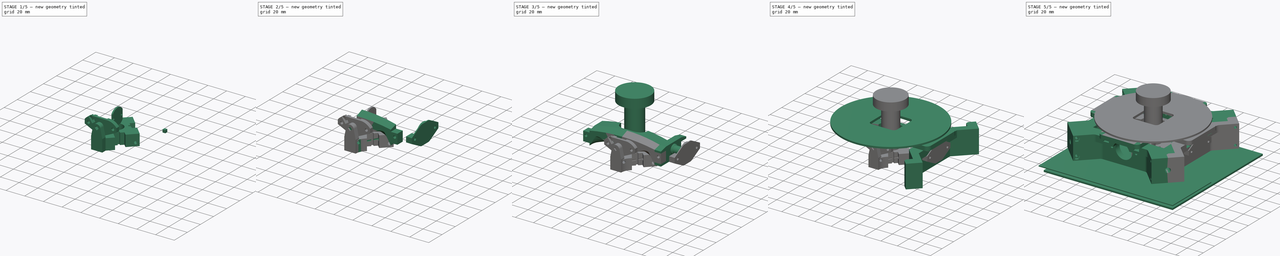
[diagram: build sequence overview — one tinted view per stage of 5, left to right]
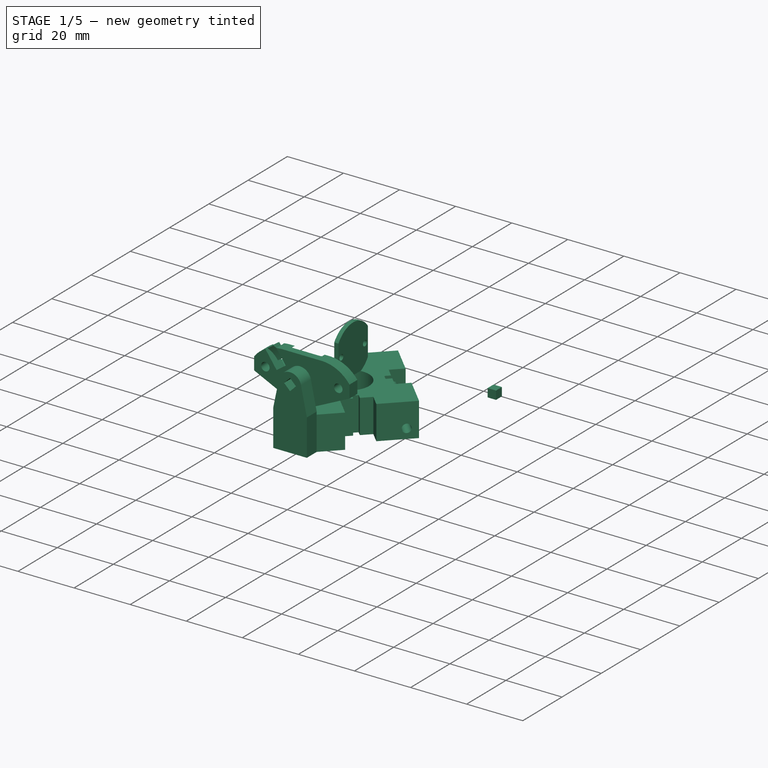
[diagram: stage 1 of 5 — iso view after this stage's code; geometry added in this stage tinted green]
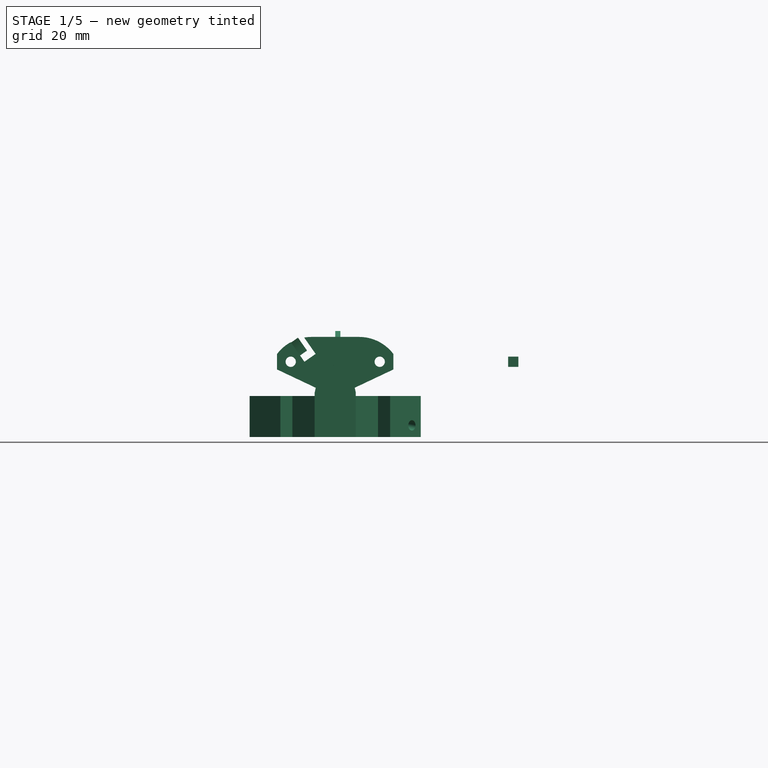
[diagram: stage 1 of 5 — front view after this stage's code; geometry added in this stage tinted green]
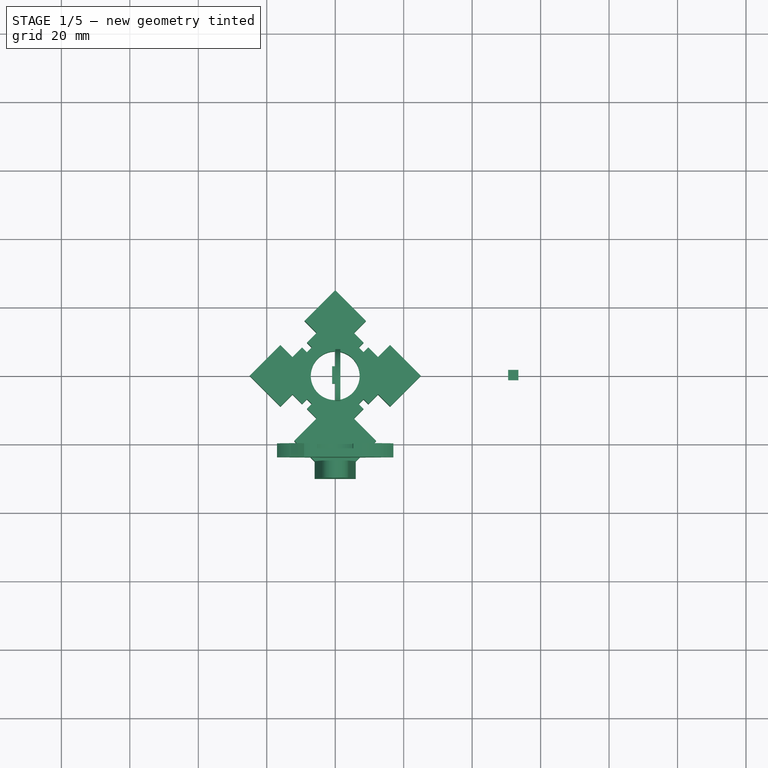
[diagram: stage 1 of 5 — top view after this stage's code; geometry added in this stage tinted green]
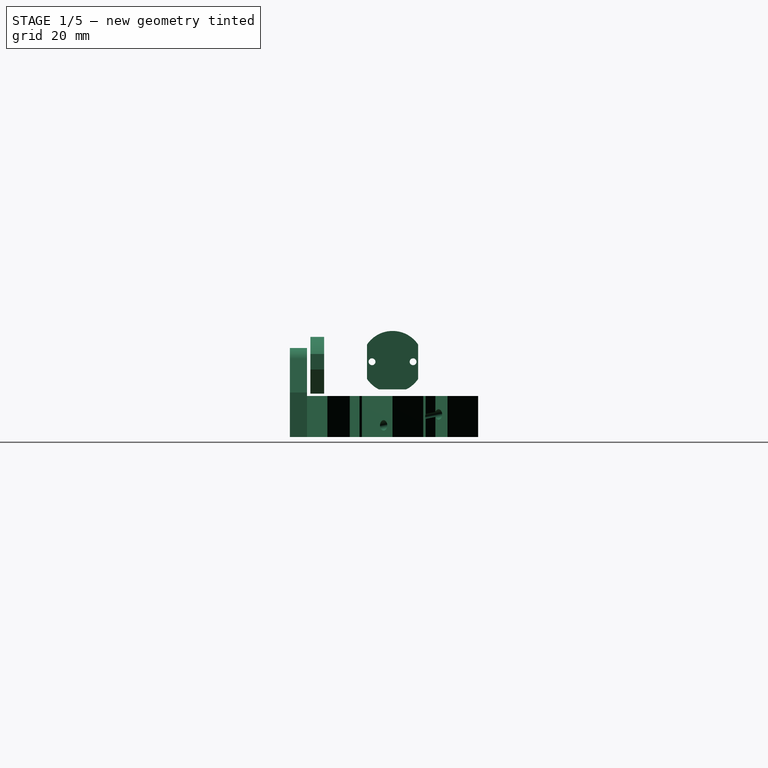
[diagram: stage 1 of 5 — right view after this stage's code; geometry added in this stage tinted green]
FCSTD DOCUMENT  (FreeCAD 0.21R33668 +7 (Git))
Label: cougarGimbalFDM
License: All rights reserved
LicenseURL: http://en.wikipedia.org/wiki/All_rights_reserved
objects: Sketcher::SketchObject×59, PartDesign::Pocket×28, PartDesign::Pad×26, PartDesign::Body×15, PartDesign::Fillet×5, Part::FeaturePython×5, PartDesign::Chamfer×5, PartDesign::Mirrored×5, App::Part×4, PartDesign::Revolution×3, PartDesign::PolarPattern×3, Part::Mirroring×2, Part::Box×2, PartDesign::Plane×1, PartDesign::AdditiveLoft×1
note: 227 computed .brp shape members not serialized (recipe doc carries the construction recipe); baked Part::Feature solids carry a one-line shape summary decoded from their .brp

FEATURE [Sketcher::SketchObject] Sketch230
  AttachmentOffset = pos=(0,0,-23) rot=(0,0,1;0rad)
  FullyConstrained = true
  MapMode = 5
  Placement = pos=(0,0,-23) rot=(0,0,1;0rad)
  Support = -> [XY_Plane045]
  sketch-geometry (1):
    g0: Circle CenterX=0 CenterY=0 CenterZ=0 NormalX=0 NormalY=0 NormalZ=1 AngleXU=0 Radius=7.15
  constraints (2):
    c: Radius(g0) = 7.15
    c: Coincident(g0,g-1)
FEATURE [Sketcher::SketchObject] Sketch232
  AttachmentOffset = pos=(0,0,-10) rot=(0,0,1;0rad)
  FullyConstrained = true
  MapMode = 5
  Placement = pos=(0,0,-10) rot=(0,0,1;0rad)
  Support = -> [XY_Plane045]
  sketch-geometry (11):
    g0: LineSegment StartX=0 StartY=0 StartZ=0 EndX=0 EndY=25 EndZ=0
    g1: LineSegment StartX=0 StartY=0 StartZ=0 EndX=25 EndY=0 EndZ=0
    g2: LineSegment StartX=25 StartY=0 StartZ=0 EndX=16.0355 EndY=8.96447 EndZ=0
    g3: LineSegment StartX=16.0355 StartY=8.96447 StartZ=0 EndX=12.5 EndY=5.42893 EndZ=0
    g4: LineSegment StartX=5.42893 StartY=12.5 StartZ=0 EndX=8.96447 EndY=16.0355 EndZ=0
    g5: LineSegment StartX=8.96447 StartY=16.0355 StartZ=0 EndX=0 EndY=25 EndZ=0
    g6: LineSegment StartX=5.42893 StartY=12.5 StartZ=0 EndX=8.25736 EndY=9.67157 EndZ=0
    g7: LineSegment StartX=8.25736 StartY=9.67157 StartZ=0 EndX=6.84315 EndY=8.25736 EndZ=0
    g8: LineSegment StartX=6.84315 StartY=8.25736 StartZ=0 EndX=8.25736 EndY=6.84315 EndZ=0
    g9: LineSegment StartX=8.25736 StartY=6.84315 StartZ=0 EndX=9.67157 EndY=8.25736 EndZ=0
    g10: LineSegment StartX=9.67157 StartY=8.25736 StartZ=0 EndX=12.5 EndY=5.42893 EndZ=0
  constraints (31):
    c: Coincident(g0,g-1)
    c: Vertical(g0)
    c: Coincident(g1,g0)
    c: PointOnObject(g1,g-1)
    c: Coincident(g3,g2)
    c: Coincident(g5,g4)
    c: Coincident(g6,g4)
    c: Coincident(g7,g6)
    c: Coincident(g8,g7)
    c: Coincident(g9,g8)
    c: Coincident(g10,g9)
    c: Coincident(g10,g3)
    c: Equal(g0,g1)
    c: Parallel(g2,g10)
    c: Parallel(g10,g8)
    c: Parallel(g8,g6)
    c: Parallel(g9,g3)
    c: Parallel(g3,g7)
    c: Parallel(g7,g4)
    c: Equal(g2,g5)
    c: Equal(g3,g4)
    c: Equal(g10,g6)
    c: Distance(g8) = 2
    c: Distance(g3) = 5
    c: Distance(g2,g4) = 10
    c: Distance(g9) = 2
    c: Coincident(g2,g1)
    c: DistanceX(g1,g1) = 25
    c: Perpendicular(g2,g3)
    c: Tangent(g2,g5)
    c: Coincident(g5,g0)
FEATURE [PartDesign::Pad] Pad081  label="MainBlock"
  Direction = (0,0,1)
  Length = 12
  Length2 = 10
  Profile = -> Sketch232
  ReferenceAxis = -> Sketch232 [N_Axis]
  Reversed = true
  Type = 0
FEATURE [PartDesign::Body] Body031  label="Ref_UpperPlate"
  Group = -> [Sketch113,Revolution002,Sketch114,Pocket060,Sketch263,Pad089,PolarPattern001]
  Origin = -> Origin031
  Tip = -> PolarPattern001
FEATURE [PartDesign::Pocket] Pocket159
  BaseFeature = -> Pad081
  Direction = (0,0,-1)
  Length = 20
  Length2 = 5
  Profile = -> Sketch230
  ReferenceAxis = -> Sketch230 [N_Axis]
  Reversed = true
  Type = 0
FEATURE [PartDesign::PolarPattern] PolarPattern
  Angle = 360
  Axis = -> Sketch232 [N_Axis]
  BaseFeature = -> Pocket159
  Occurrences = 4
  Originals = -> [Pad081,Pocket159]
FEATURE [Sketcher::SketchObject] Sketch268
  AttachmentOffset = pos=(0,0,12) rot=(0,0,1;0rad)
  FullyConstrained = true
  MapMode = 5
  Placement = pos=(0,-12,-2.7e-15) rot=(1,0,0;1.5708rad)
  Support = -> [XZ_Plane028]
  sketch-geometry (1):
    g0: Circle CenterX=0 CenterY=0 CenterZ=0 NormalX=0 NormalY=0 NormalZ=1 AngleXU=0 Radius=4
  constraints (2):
    c: Coincident(g0,g-1)
    c: Radius(g0) = 4
FEATURE [Sketcher::SketchObject] Sketch270
  FullyConstrained = true
  MapMode = 5
  Placement = pos=(0,0,0) rot=(0.57735,0.57735,0.57735;2.0944rad)
  Support = -> [YZ_Plane054]
  sketch-geometry (8):
    g0: LineSegment StartX=-7.48331 StartY=-5 StartZ=0 EndX=-7.48331 EndY=5 EndZ=0
    g1: ArcOfCircle CenterX=0 CenterY=0 CenterZ=0 NormalX=0 NormalY=0 NormalZ=1 AngleXU=0 Radius=9 StartAngle=3.73062 EndAngle=4.25183
    g2: LineSegment StartX=7.48331 StartY=5 StartZ=0 EndX=7.48331 EndY=-5 EndZ=0
    g3: LineSegment StartX=-4 StartY=-8.06226 StartZ=0 EndX=4 EndY=-8.06226 EndZ=0
    g4: ArcOfCircle CenterX=0 CenterY=0 CenterZ=0 NormalX=0 NormalY=0 NormalZ=1 AngleXU=0 Radius=9 StartAngle=5.17294 EndAngle=5.69415
    g5: ArcOfCircle CenterX=0 CenterY=0 CenterZ=0 NormalX=0 NormalY=0 NormalZ=1 AngleXU=0 Radius=9 StartAngle=0.589031 EndAngle=2.55256
    g6: Circle CenterX=6 CenterY=0 CenterZ=0 NormalX=0 NormalY=0 NormalZ=1 AngleXU=0 Radius=1
    g7: Circle CenterX=-6 CenterY=0 CenterZ=0 NormalX=0 NormalY=0 NormalZ=1 AngleXU=0 Radius=1
  constraints (21):
    c: Coincident(g1,g0)
    c: Vertical(g2)
    c: Coincident(g3,g1)
    c: Coincident(g4,g2)
    c: Coincident(g4,g3)
    c: Symmetric(g0,g0,g-1)
    c: Symmetric(g3,g1,g-2)
    c: Horizontal(g2,g0)
    c: Coincident(g5,g0)
    c: Coincident(g5,g2)
    c: Radius(g5) = 9
    c: DistanceY(g2,g2) = 10
    c: DistanceX(g3,g3) = 8
    c: Coincident(g1,g5)
    c: Coincident(g1,g4)
    c: Coincident(g1,g-1)
    c: PointOnObject(g6,g-1)
    c: Equal(g6,g7)
    c: Radius(g6) = 1
    c: Symmetric(g6,g7,g-2)
    c: DistanceX(g-1,g6) = 6
FEATURE [PartDesign::Pad] Pad091
  Direction = (1,-2e-16,3e-16)
  Length = 1.5
  Length2 = 10
  Placement = pos=(0,0,0) rot=(0.57735,0.57735,0.57735;2.0944rad)
  Profile = -> Sketch270
  ReferenceAxis = -> Sketch270 [N_Axis]
  Type = 0
FEATURE [Sketcher::SketchObject] Sketch271
  FullyConstrained = true
  MapMode = 5
  Placement = pos=(0,0,0) rot=(0.57735,0.57735,0.57735;2.0944rad)
  Support = -> [YZ_Plane054]
  sketch-geometry (4):
    g0: LineSegment StartX=-2.5 StartY=3.5 StartZ=0 EndX=2.5 EndY=3.5 EndZ=0
    g1: LineSegment StartX=2.5 StartY=3.5 StartZ=0 EndX=2.5 EndY=-3.5 EndZ=0
    g2: LineSegment StartX=2.5 StartY=-3.5 StartZ=0 EndX=-2.5 EndY=-3.5 EndZ=0
    g3: LineSegment StartX=-2.5 StartY=-3.5 StartZ=0 EndX=-2.5 EndY=3.5 EndZ=0
  constraints (11):
    c: Coincident(g0,g1)
    c: Coincident(g1,g2)
    c: Coincident(g2,g3)
    c: Coincident(g3,g0)
    c: Horizontal(g0)
    c: Horizontal(g2)
    c: Vertical(g1)
    c: Vertical(g3)
    c: Symmetric(g1,g0,g-1)
    c: DistanceX(g2,g2) = 5
    c: DistanceY(g1,g1) = 7
FEATURE [PartDesign::Pad] Pad092
  BaseFeature = -> Pad091
  Direction = (1,-2e-16,3e-16)
  Length = 1.8
  Length2 = 10
  Midplane = true
  Placement = pos=(0,0,0) rot=(0.57735,0.57735,0.57735;2.0944rad)
  Profile = -> Sketch271
  ReferenceAxis = -> Sketch271 [N_Axis]
  Type = 0
FEATURE [Sketcher::SketchObject] Sketch277
  AttachmentOffset = pos=(0,0,57.2) rot=(0,0,1;0rad)
  FullyConstrained = true
  MapMode = 5
  Placement = pos=(57.2,-1.27e-14,1.27e-14) rot=(0.57735,0.57735,0.57735;2.0944rad)
  Support = -> [YZ_Plane057]
  sketch-geometry (6):
    g0: LineSegment StartX=-20 StartY=2.8 StartZ=0 EndX=-20 EndY=-2.8 EndZ=0
    g1: LineSegment StartX=0 StartY=10.3 StartZ=0 EndX=0 EndY=-10.3 EndZ=0
    g2: LineSegment StartX=-20 StartY=-2.8 StartZ=0 EndX=-6 EndY=-10.3 EndZ=0
    g3: LineSegment StartX=-6 StartY=-10.3 StartZ=0 EndX=0 EndY=-10.3 EndZ=0
    g4: LineSegment StartX=-20 StartY=2.8 StartZ=0 EndX=-6 EndY=10.3 EndZ=0
    g5: LineSegment StartX=-6 StartY=10.3 StartZ=0 EndX=0 EndY=10.3 EndZ=0
  constraints (16):
    c: PointOnObject(g1,g-2)
    c: PointOnObject(g1,g-2)
    c: Symmetric(g0,g0,g-1)
    c: DistanceY(g0,g0) = 5.6
    c: Coincident(g2,g0)
    c: Coincident(g3,g2)
    c: Coincident(g3,g1)
    c: Horizontal(g3)
    c: DistanceX(g3,g3) = 6
    c: DistanceY(g1,g-1) = 10.3
    c: Coincident(g4,g0)
    c: Coincident(g5,g4)
    c: Coincident(g5,g1)
    c: Symmetric(g2,g4,g-1)
    c: Horizontal(g5)
    c: DistanceX(g0,g-1) = 20
FEATURE [Sketcher::SketchObject] Sketch278
  AttachmentOffset = pos=(0,0,24) rot=(0,0,1;0rad)
  FullyConstrained = true
  MapMode = 5
  Placement = pos=(0,-24,-5.3e-15) rot=(1,0,0;1.5708rad)
  Support = -> [XZ_Plane058]
  sketch-geometry (6):
    g0: LineSegment StartX=-17 StartY=-2.25 StartZ=0 EndX=-17 EndY=2.25 EndZ=0
    g1: LineSegment StartX=-7 StartY=7.25 StartZ=0 EndX=-1.8e-15 EndY=7.25 EndZ=0
    g2: LineSegment StartX=-1.7e-15 StartY=7.25 StartZ=0 EndX=-1.7e-15 EndY=-9.3 EndZ=0
    g3: LineSegment StartX=-3.97485 StartY=-8.40777 StartZ=0 EndX=-17 EndY=-2.25 EndZ=0
    g4: ArcOfCircle CenterX=0 CenterY=0 CenterZ=0 NormalX=0 NormalY=0 NormalZ=1 AngleXU=0 Radius=9.3 StartAngle=4.27077 EndAngle=4.71239
    g5: ArcOfCircle CenterX=-7 CenterY=-5.25 CenterZ=0 NormalX=0 NormalY=0 NormalZ=1 AngleXU=0 Radius=12.5 StartAngle=1.5708 EndAngle=2.49809
  constraints (16):
    c: Horizontal(g1)
    c: Coincident(g2,g1)
    c: PointOnObject(g2,g-2)
    c: Vertical(g2)
    c: Coincident(g3,g0)
    c: DistanceX(g0,g-1) = 17
    c: DistanceY(g0,g0) = 4.5
    c: DistanceY(g0,g1) = 5
    c: DistanceX(g1,g1) = 7
    c: Symmetric(g0,g0,g-1)
    c: Coincident(g4,g-1)
    c: Coincident(g4,g2)
    c: Tangent(g4,g3) = 1.5708
    c: DistanceY(g2,g-1) = 9.3
    c: Coincident(g5,g0)
    c: Tangent(g5,g1) = 1.5708
FEATURE [PartDesign::Pad] Pad096
  Direction = (0,-1,-2e-16)
  Length = 4
  Length2 = 10
  Placement = pos=(0,0,0) rot=(1,0,0;1.5708rad)
  Profile = -> Sketch278
  ReferenceAxis = -> Sketch278 [N_Axis]
  Reversed = true
  Type = 0
FEATURE [PartDesign::Body] Body051  label="HallAdapterOuter"
  Group = -> [Sketch277,Pad099,Sketch286,Pad100,Sketch287,Pad101,Sketch288,Pad102,Sketch289,Pocket169,Mirrored011,Fillet002,Fillet004]
  Origin = -> Origin057
  Tip = -> Fillet004
FEATURE [App::Part] Part005  label="OuterMagnetAssembly"
  Group = -> [Body051,Body050]
  Origin = -> Origin056
FEATURE [Part::Box] Box  label="Ref_MagnetOuter"
  AttacherType = Attacher::AttachEngine3D
  Height = 3
  Length = 3
  Placement = pos=(50.5,-1.5,-1.5) rot=(0,0,1;0rad)
  Width = 3
FEATURE [Sketcher::SketchObject] Sketch294
  FullyConstrained = true
  MapMode = 5
  Placement = pos=(2e-15,-20,4e-16) rot=(-1,0,0;1.5708rad)
  Support = -> [Pad096]
  sketch-geometry (1):
    g0: Circle CenterX=-13 CenterY=0 CenterZ=0 NormalX=0 NormalY=0 NormalZ=1 AngleXU=0 Radius=1.5
  constraints (3):
    c: PointOnObject(g0,g-1)
    c: Radius(g0) = 1.5
    c: DistanceX(g0,g-1) = 13
FEATURE [PartDesign::Pocket] Pocket172
  BaseFeature = -> Pad096
  Direction = (1e-16,-1,-2e-16)
  Length = 6
  Length2 = 5
  Placement = pos=(0,0,0) rot=(1,0,0;1.5708rad)
  Profile = -> Sketch294
  ReferenceAxis = -> Sketch294 [N_Axis]
  Type = 0
FEATURE [Sketcher::SketchObject] Sketch295
  FullyConstrained = true
  MapMode = 5
  Placement = pos=(2e-15,-20,4e-16) rot=(-1,0,0;1.5708rad)
  Support = -> [Pocket172]
  sketch-geometry (5):
    g0: LineSegment StartX=6e-16 StartY=9 StartZ=0 EndX=-1.7e-15 EndY=-9 EndZ=0
    g1: Circle CenterX=-6 CenterY=0 CenterZ=0 NormalX=0 NormalY=0 NormalZ=1 AngleXU=0 Radius=0.95
    g2: ArcOfCircle CenterX=0 CenterY=0 CenterZ=0 NormalX=0 NormalY=0 NormalZ=1 AngleXU=0 Radius=9 StartAngle=3.72728 EndAngle=4.71239
    g3: LineSegment StartX=-7.5 StartY=-4.97494 StartZ=0 EndX=-7.5 EndY=4.97494 EndZ=0
    g4: ArcOfCircle CenterX=0 CenterY=0 CenterZ=0 NormalX=0 NormalY=0 NormalZ=1 AngleXU=0 Radius=9 StartAngle=1.5708 EndAngle=2.55591
  constraints (15):
    c: PointOnObject(g0,g-2)
    c: PointOnObject(g0,g-2)
    c: PointOnObject(g1,g-1)
    c: Radius(g1) = 0.95
    c: Coincident(g3,g2)
    c: Vertical(g3)
    c: Coincident(g4,g3)
    c: DistanceX(g1,g2) = 6
    c: Coincident(g2,g0)
    c: Radius(g4) = 9
    c: Radius(g2) = 9
    c: Coincident(g2,g-1)
    c: Coincident(g4,g2)
    c: DistanceX(g3,g-1) = 7.5
    c: Coincident(g0,g4)
FEATURE [PartDesign::Pocket] Pocket173
  BaseFeature = -> Pocket172
  Direction = (1e-16,-1,-2e-16)
  Length = 1.5
  Length2 = 5
  Placement = pos=(0,0,0) rot=(1,0,0;1.5708rad)
  Profile = -> Sketch295
  ReferenceAxis = -> Sketch295 [N_Axis]
  Type = 0
FEATURE [Sketcher::SketchObject] Sketch296
  AttachmentOffset = pos=(0,0,25) rot=(0,0,1;0rad)
  FullyConstrained = true
  MapMode = 5
  Placement = pos=(0,-25,-5.6e-15) rot=(1,0,0;1.5708rad)
  Support = -> [XZ_Plane045]
  sketch-geometry (10):
    g0: LineSegment StartX=-3.91278 StartY=0.830744 StartZ=0 EndX=-6 EndY=-9 EndZ=0
    g1: LineSegment StartX=3.91278 StartY=0.830744 StartZ=0 EndX=6 EndY=-9 EndZ=0
    g2: LineSegment StartX=6 StartY=-9 StartZ=0 EndX=6 EndY=-22 EndZ=0
    g3: LineSegment StartX=6 StartY=-22 StartZ=0 EndX=-6 EndY=-22 EndZ=0
    g4: LineSegment StartX=-6 StartY=-22 StartZ=0 EndX=-6 EndY=-9 EndZ=0
    g5: ArcOfCircle CenterX=0 CenterY=0 CenterZ=0 NormalX=0 NormalY=0 NormalZ=1 AngleXU=0 Radius=4 StartAngle=0.209209 EndAngle=2.93238
    g6: LineSegment StartX=-2.12132 StartY=1.3e-15 StartZ=0 EndX=0 EndY=-2.12132 EndZ=0
    g7: LineSegment StartX=0 StartY=-2.12132 StartZ=0 EndX=2.12132 EndY=0 EndZ=0
    g8: LineSegment StartX=2.12132 StartY=0 StartZ=0 EndX=0 EndY=2.12132 EndZ=0
    g9: LineSegment StartX=0 StartY=2.12132 StartZ=0 EndX=-2.12132 EndY=1.3e-15 EndZ=0
  constraints (27):
    c: Symmetric(g1,g0,g-2)
    c: DistanceY(g1,g-1) = 9
    c: DistanceX(g0,g1) = 12
    c: Coincident(g2,g3)
    c: Coincident(g3,g4)
    c: Horizontal(g3)
    c: Vertical(g2)
    c: Vertical(g4)
    c: Coincident(g2,g1)
    c: Coincident(g4,g0)
    c: DistanceY(g4,g4) = 13
    c: Coincident(g5,g0)
    c: Tangent(g5,g1) = 1.5708
    c: Horizontal(g0,g1)
    c: Radius(g5) = 4
    c: Coincident(g5,g-1)
    c: Coincident(g7,g6)
    c: Coincident(g8,g7)
    c: Coincident(g9,g8)
    c: Coincident(g9,g6)
    c: Equal(g9,g6)
    c: Equal(g6,g7)
    c: Equal(g7,g8)
    c: Symmetric(g8,g6,g5)
    c: PointOnObject(g8,g-2)
    c: Perpendicular(g8,g7)
    c: Distance(g8) = 3
FEATURE [Sketcher::SketchObject] Sketch297
  AttachmentOffset = pos=(0,0,-22) rot=(0,0,1;0rad)
  FullyConstrained = true
  MapMode = 5
  Placement = pos=(0,0,-22) rot=(0,0,1;0rad)
  Support = -> [XY_Plane045]
  sketch-geometry (6):
    g0: LineSegment StartX=-11.965 StartY=-19.035 StartZ=0 EndX=-5.43 EndY=-12.5 EndZ=0
    g1: LineSegment StartX=-5.43 StartY=-12.5 StartZ=0 EndX=5.43 EndY=-12.5 EndZ=0
    g2: LineSegment StartX=5.43 StartY=-12.5 StartZ=0 EndX=11.965 EndY=-19.035 EndZ=0
    g3: LineSegment StartX=11.965 StartY=-19.035 StartZ=0 EndX=6 EndY=-25 EndZ=0
    g4: LineSegment StartX=6 StartY=-25 StartZ=0 EndX=-6 EndY=-25 EndZ=0
    g5: LineSegment StartX=-6 StartY=-25 StartZ=0 EndX=-11.965 EndY=-19.035 EndZ=0
  constraints (17):
    c: Coincident(g1,g0)
    c: Coincident(g2,g1)
    c: Coincident(g3,g2)
    c: Coincident(g4,g3)
    c: Horizontal(g4)
    c: Coincident(g5,g4)
    c: Coincident(g5,g0)
    c: Angle(g-2,g0) = 2.35619
    c: Symmetric(g1,g0,g-2)
    c: Perpendicular(g0,g2)
    c: Horizontal(g2,g0)
    c: DistanceY(g0,g-1) = 12.5
    c: DistanceX(g1,g1) = 10.86
    c: Perpendicular(g0,g5)
    c: Perpendicular(g2,g3)
    c: DistanceY(g3,g-1) = 25
    c: DistanceX(g4,g4) = 12
FEATURE [PartDesign::Pad] Pad106
  BaseFeature = -> PolarPattern
  Direction = (0,0,1)
  Length = 12
  Length2 = 10
  Profile = -> Sketch297
  ReferenceAxis = -> Sketch297 [N_Axis]
  Type = 0
FEATURE [PartDesign::Pad] Pad105
  BaseFeature = -> Pad106
  Direction = (0,-1,-2e-16)
  Length = 5
  Length2 = 10
  Profile = -> Sketch296
  ReferenceAxis = -> Sketch296 [N_Axis]
  Type = 0
FEATURE [PartDesign::Pocket] Pocket160
  BaseFeature = -> Pad105
  Direction = (-0.700225,0.700225,0.139173)
  Length = 60
  Length2 = 5
  Midplane = true
  Profile = -> Sketch266
  ReferenceAxis = -> Sketch266 [N_Axis]
  Type = 0
FEATURE [Sketcher::SketchObject] Sketch299
  FullyConstrained = true
  MapMode = 5
  Placement = pos=(2e-15,-20,4e-16) rot=(-1,0,0;1.5708rad)
  Support = -> [Pocket172]
  sketch-geometry (4):
    g0: LineSegment StartX=0 StartY=4 StartZ=0 EndX=-4.5 EndY=4 EndZ=0
    g1: LineSegment StartX=-4.5 StartY=4 StartZ=0 EndX=-4.5 EndY=-4 EndZ=0
    g2: LineSegment StartX=-4.5 StartY=-4 StartZ=0 EndX=0 EndY=-4 EndZ=0
    g3: LineSegment StartX=0 StartY=-4 StartZ=0 EndX=0 EndY=4 EndZ=0
  constraints (11):
    c: Coincident(g0,g1)
    c: Coincident(g1,g2)
    c: Coincident(g2,g3)
    c: Coincident(g3,g0)
    c: Horizontal(g0)
    c: Horizontal(g2)
    c: Vertical(g3)
    c: PointOnObject(g0,g-2)
    c: DistanceX(g2,g2) = 4.5
    c: DistanceY(g1,g1) = 8
    c: Symmetric(g0,g1,g-1)
FEATURE [PartDesign::Pocket] Pocket175
  BaseFeature = -> Pocket173
  Direction = (1e-16,-1,-2e-16)
  Length = 3
  Length2 = 5
  Placement = pos=(0,0,0) rot=(1,0,0;1.5708rad)
  Profile = -> Sketch299
  ReferenceAxis = -> Sketch299 [N_Axis]
  Type = 0
FEATURE [PartDesign::Mirrored] Mirrored012
  BaseFeature = -> Pocket175
  MirrorPlane = -> Sketch278 [V_Axis]
  Originals = -> [Pad096,Pocket172,Pocket173,Pocket175]
  Placement = pos=(0,0,0) rot=(1,0,0;1.5708rad)
FEATURE [Sketcher::SketchObject] Sketch300
  AttachmentOffset = pos=(0,0,24) rot=(0,0,1;0rad)
  FullyConstrained = true
  MapMode = 5
  Placement = pos=(0,-24,-5.3e-15) rot=(1,0,0;1.5708rad)
  Support = -> [XZ_Plane058]
  sketch-geometry (4):
    g0: LineSegment StartX=-9 StartY=0 StartZ=0 EndX=-13.5886 EndY=6.55322 EndZ=0
    g1: LineSegment StartX=-13.5886 StartY=6.55322 StartZ=0 EndX=-10.312 EndY=8.84752 EndZ=0
    g2: LineSegment StartX=-10.312 StartY=8.84752 StartZ=0 EndX=-5.72339 EndY=2.29431 EndZ=0
    g3: LineSegment StartX=-5.72339 StartY=2.29431 StartZ=0 EndX=-9 EndY=0 EndZ=0
  constraints (12):
    c: Coincident(g0,g1)
    c: Coincident(g1,g2)
    c: Coincident(g2,g3)
    c: Coincident(g3,g0)
    c: Perpendicular(g1,g0)
    c: Perpendicular(g1,g2)
    c: Perpendicular(g0,g3)
    c: Distance(g1) = 4
    c: Distance(g0) = 8
    c: PointOnObject(g0,g-1)
    c: DistanceX(g0,g-1) = 9
    c: Angle(g-1,g3) = 0.610865
FEATURE [PartDesign::Pocket] Pocket176
  BaseFeature = -> Mirrored012
  Direction = (0,1,2e-16)
  Length = 5
  Length2 = 5
  Placement = pos=(0,0,0) rot=(1,0,0;1.5708rad)
  Profile = -> Sketch300
  ReferenceAxis = -> Sketch300 [N_Axis]
  Type = 0
FEATURE [Sketcher::SketchObject] Sketch301
  AttachmentOffset = pos=(0,0,23.5) rot=(0,0,1;0rad)
  FullyConstrained = true
  MapMode = 5
  Placement = pos=(0,-23.5,-5.2e-15) rot=(1,0,0;1.5708rad)
  Support = -> [XZ_Plane058]
  sketch-geometry (5):
    g0: ArcOfCircle CenterX=0 CenterY=0 CenterZ=0 NormalX=0 NormalY=0 NormalZ=1 AngleXU=0 Radius=8.5 StartAngle=4.288 EndAngle=5.13678
    g1: LineSegment StartX=3.5 StartY=-7.74597 StartZ=0 EndX=3.5 EndY=-3.74597 EndZ=0
    g2: LineSegment StartX=3.5 StartY=-3.74597 StartZ=0 EndX=-6.70569 EndY=3.27661 EndZ=0
    g3: LineSegment StartX=-6.70569 StartY=3.27661 StartZ=0 EndX=-9 EndY=0 EndZ=0
    g4: LineSegment StartX=-9 StartY=0 StartZ=0 EndX=-3.5 EndY=-7.74597 EndZ=0
  constraints (15):
    c: Coincident(g0,g-1)
    c: Radius(g0) = 8.5
    c: DistanceX(g-1,g0) = 3.5
    c: Vertical(g1)
    c: DistanceY(g1,g1) = 4
    c: Horizontal(g0,g0)
    c: Coincident(g2,g1)
    c: Coincident(g3,g2)
    c: PointOnObject(g3,g-1)
    c: Coincident(g4,g3)
    c: Coincident(g4,g0)
    c: Angle(g-1,g3) = 0.959931
    c: Distance(g3) = 4
    c: DistanceX(g3,g-1) = 9
    c: Coincident(g1,g0)
FEATURE [PartDesign::Pocket] Pocket177
  BaseFeature = -> Pocket176
  Direction = (0,1,2e-16)
  Length = 5
  Length2 = 5
  Placement = pos=(0,0,0) rot=(1,0,0;1.5708rad)
  Profile = -> Sketch301
  ReferenceAxis = -> Sketch301 [N_Axis]
  Type = 0
FEATURE [Sketcher::SketchObject] Sketch302
  FullyConstrained = true
  MapMode = 5
  Placement = pos=(-6.03909,5e-16,-4.22862) rot=(0.461749,0,0.887011;3.14159rad)
  Support = -> [Pocket177]
  sketch-geometry (4):
    g0: LineSegment StartX=12 StartY=20 StartZ=0 EndX=12 EndY=23 EndZ=0
    g1: ArcOfCircle CenterX=7.4 CenterY=29.3033 CenterZ=0 NormalX=0 NormalY=0 NormalZ=1 AngleXU=0 Radius=7.80333 StartAngle=4.71239 EndAngle=5.34282
    g2: LineSegment StartX=7.4 StartY=21.5 StartZ=0 EndX=7.4 EndY=20 EndZ=0
    g3: LineSegment StartX=7.4 StartY=20 StartZ=0 EndX=12 EndY=20 EndZ=0
  constraints (13):
    c: Vertical(g0)
    c: DistanceX(g-1,g0) = 12
    c: DistanceX(g1,g0) = 4.6
    c: DistanceY(g0,g0) = 3
    c: Coincident(g1,g0)
    c: DistanceY(g-1,g0) = 20
    c: Coincident(g2,g1)
    c: Coincident(g3,g2)
    c: Coincident(g3,g0)
    c: Horizontal(g3)
    c: Vertical(g2)
    c: DistanceY(g2,g2) = 1.5
    c: Vertical(g1,g1)
FEATURE [PartDesign::Pad] Pad107
  BaseFeature = -> Pocket177
  Direction = (0.819152,0,0.573576)
  Length = 2.5
  Length2 = 10
  Placement = pos=(0,0,0) rot=(1,0,0;1.5708rad)
  Profile = -> Sketch302
  ReferenceAxis = -> Sketch302 [N_Axis]
  Type = 0
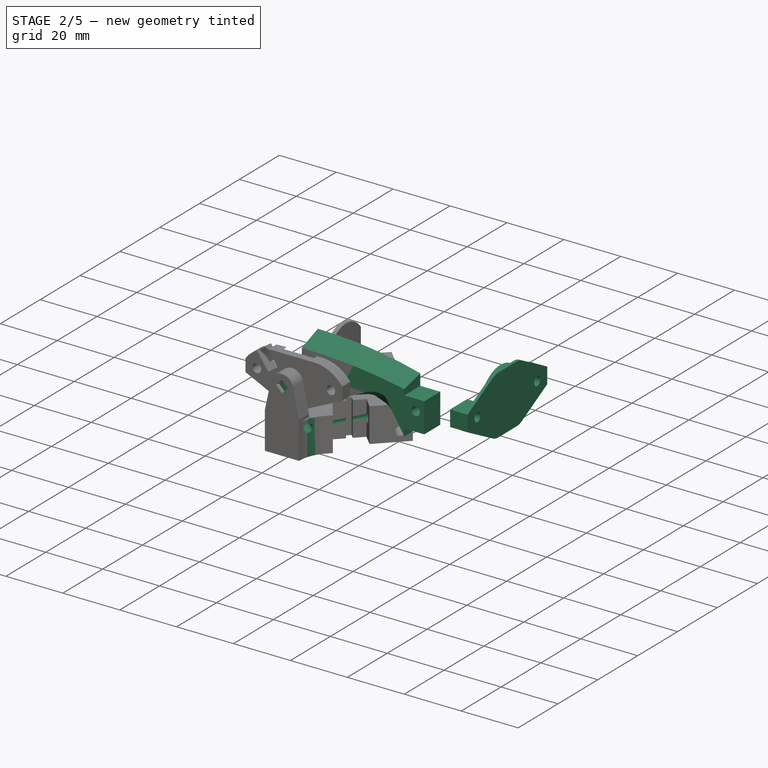
[diagram: stage 2 of 5 — iso view after this stage's code; geometry added in this stage tinted green]
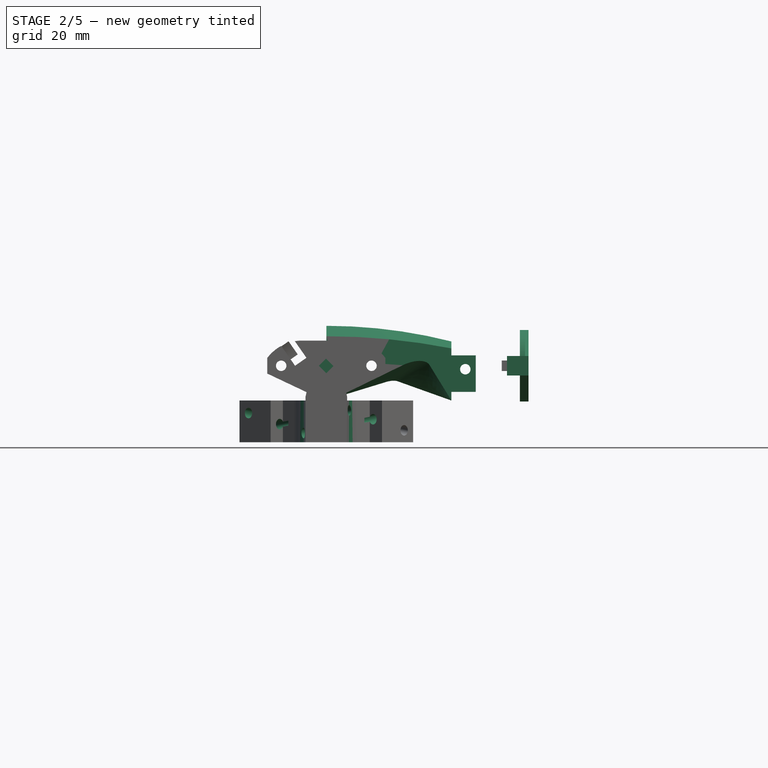
[diagram: stage 2 of 5 — front view after this stage's code; geometry added in this stage tinted green]
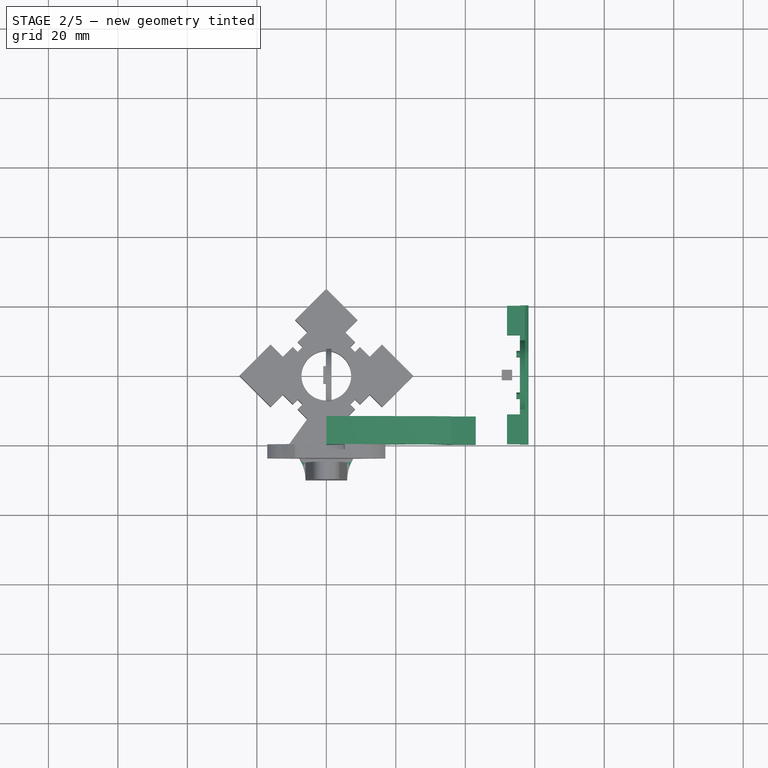
[diagram: stage 2 of 5 — top view after this stage's code; geometry added in this stage tinted green]
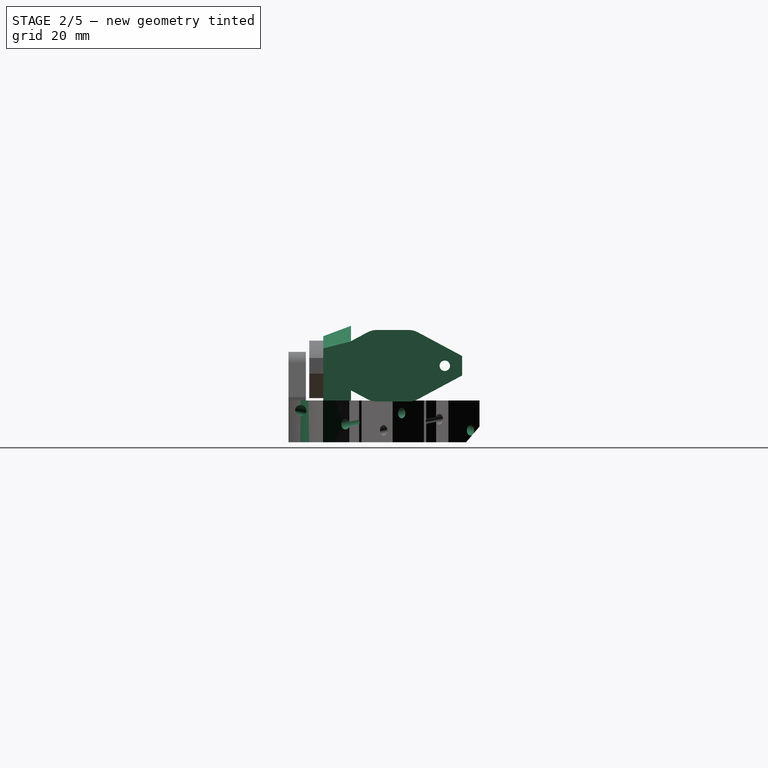
[diagram: stage 2 of 5 — right view after this stage's code; geometry added in this stage tinted green]
FEATURE [PartDesign::AdditiveLoft] AdditiveLoft
  Closed = false
  Placement = pos=(0,0,0) rot=(1,0,0;1.5708rad)
  Profile = -> Sketch103
  Ruled = false
  Sections = -> [Sketch265]
FEATURE [PartDesign::Pocket] Pocket058
  BaseFeature = -> AdditiveLoft
  Direction = (0,1,2e-16)
  Length = 50
  Length2 = 5
  Placement = pos=(0,0,0) rot=(1,0,0;1.5708rad)
  Profile = -> Sketch107
  ReferenceAxis = -> Sketch107 [N_Axis]
  Reversed = true
  Type = 0
FEATURE [PartDesign::Pocket] Pocket056
  BaseFeature = -> Pocket058
  Direction = (0,1,2e-16)
  Length = 6.5
  Length2 = 5
  Placement = pos=(0,0,0) rot=(1,0,0;1.5708rad)
  Profile = -> Sketch104
  ReferenceAxis = -> Sketch104 [N_Axis]
  Reversed = true
  Type = 0
FEATURE [PartDesign::Pad] Pad099
  Direction = (1,-2e-16,3e-16)
  Length = 1
  Length2 = 10
  Placement = pos=(0,0,0) rot=(0.57735,0.57735,0.57735;2.0944rad)
  Profile = -> Sketch277
  ReferenceAxis = -> Sketch277 [N_Axis]
  Type = 0
FEATURE [Sketcher::SketchObject] Sketch286
  FullyConstrained = true
  MapMode = 5
  Placement = pos=(57.2,-1.94e-14,8.6e-15) rot=(-0.57735,-0.57735,0.57735;2.0944rad)
  Support = -> [Pad099]
  sketch-geometry (1):
    g0: Circle CenterX=-6 CenterY=0 CenterZ=0 NormalX=0 NormalY=0 NormalZ=1 AngleXU=0 Radius=0.95
  constraints (3):
    c: PointOnObject(g0,g-1)
    c: DistanceX(g0,g-1) = 6
    c: Radius(g0) = 0.95
FEATURE [PartDesign::Pad] Pad100
  BaseFeature = -> Pad099
  Direction = (-1,5e-16,-4e-16)
  Length = 2.5
  Length2 = 10
  Placement = pos=(0,0,0) rot=(0.57735,0.57735,0.57735;2.0944rad)
  Profile = -> Sketch286
  ReferenceAxis = -> Sketch286 [N_Axis]
  Type = 0
FEATURE [Sketcher::SketchObject] Sketch287
  FullyConstrained = true
  MapMode = 5
  Placement = pos=(57.2,-1.94e-14,8.6e-15) rot=(-0.57735,-0.57735,0.57735;2.0944rad)
  Support = -> [Pad100]
  sketch-geometry (8):
    g0: LineSegment StartX=-20 StartY=-2.8 StartZ=0 EndX=-20 EndY=2.8 EndZ=0
    g1: LineSegment StartX=-20 StartY=2.8 StartZ=0 EndX=-6 EndY=10.3 EndZ=0
    g2: LineSegment StartX=-6 StartY=10.3 StartZ=0 EndX=0 EndY=10.3 EndZ=0
    g3: ArcOfCircle CenterX=0 CenterY=0 CenterZ=0 NormalX=0 NormalY=0 NormalZ=1 AngleXU=0 Radius=9.1 StartAngle=1.5708 EndAngle=4.71239
    g4: LineSegment StartX=6e-16 StartY=9.1 StartZ=0 EndX=0 EndY=10.3 EndZ=0
    g5: LineSegment StartX=-1.7e-15 StartY=-9.1 StartZ=0 EndX=-1.9e-15 EndY=-10.3 EndZ=0
    g6: ArcOfCircle CenterX=0 CenterY=0 CenterZ=0 NormalX=0 NormalY=0 NormalZ=1 AngleXU=0 Radius=10.3 StartAngle=3.4169 EndAngle=4.71239
    g7: LineSegment StartX=-20 StartY=-2.8 StartZ=0 EndX=-9.91211 EndY=-2.8 EndZ=0
  constraints (23):
    c: Coincident(g1,g0)
    c: Coincident(g2,g1)
    c: PointOnObject(g2,g-2)
    c: Horizontal(g2)
    c: PointOnObject(g5,g-2)
    c: DistanceY(g-1,g2) = 10.3
    c: DistanceX(g2,g2) = 6
    c: Symmetric(g0,g0,g-1)
    c: DistanceY(g0,g0) = 5.6
    c: PointOnObject(g3,g-2)
    c: PointOnObject(g3,g-2)
    c: Coincident(g4,g3)
    c: Coincident(g4,g2)
    c: Coincident(g5,g3)
    c: Radius(g3) = 9.1
    c: DistanceX(g0,g-1) = 20
    c: Coincident(g3,g-1)
    c: Coincident(g6,g3)
    c: Coincident(g6,g5)
    c: Coincident(g7,g0)
    c: Coincident(g7,g6)
    c: Horizontal(g7)
    c: Radius(g6) = 10.3
FEATURE [PartDesign::Pad] Pad101
  BaseFeature = -> Pad100
  Direction = (-1,7e-16,-6e-16)
  Length = 1.5
  Length2 = 10
  Placement = pos=(0,0,0) rot=(0.57735,0.57735,0.57735;2.0944rad)
  Profile = -> Sketch287
  ReferenceAxis = -> Sketch287 [N_Axis]
  Type = 0
FEATURE [Sketcher::SketchObject] Sketch288
  FullyConstrained = true
  MapMode = 5
  Placement = pos=(57.2,-1.94e-14,8.6e-15) rot=(-0.57735,-0.57735,0.57735;2.0944rad)
  Support = -> [Pad101]
  sketch-geometry (4):
    g0: LineSegment StartX=-19.9 StartY=-2.8 StartZ=0 EndX=-11.4 EndY=-2.8 EndZ=0
    g1: LineSegment StartX=-11.4 StartY=-2.8 StartZ=0 EndX=-11.4 EndY=2.8 EndZ=0
    g2: LineSegment StartX=-11.4 StartY=2.8 StartZ=0 EndX=-19.9 EndY=2.8 EndZ=0
    g3: LineSegment StartX=-19.9 StartY=2.8 StartZ=0 EndX=-19.9 EndY=-2.8 EndZ=0
  constraints (11):
    c: Coincident(g0,g1)
    c: Coincident(g1,g2)
    c: Coincident(g2,g3)
    c: Coincident(g3,g0)
    c: Horizontal(g0)
    c: Horizontal(g2)
    c: Vertical(g1)
    c: Symmetric(g0,g2,g-1)
    c: DistanceY(g3,g3) = 5.6
    c: DistanceX(g0,g-1) = 19.9
    c: DistanceX(g2,g2) = 8.5
FEATURE [PartDesign::Pad] Pad102
  BaseFeature = -> Pad101
  Direction = (-1,1.1e-15,-5e-16)
  Length = 5.2
  Length2 = 10
  Placement = pos=(0,0,0) rot=(0.57735,0.57735,0.57735;2.0944rad)
  Profile = -> Sketch288
  ReferenceAxis = -> Sketch288 [N_Axis]
  Type = 0
FEATURE [Sketcher::SketchObject] Sketch289
  FullyConstrained = true
  MapMode = 5
  Placement = pos=(58.2,-1.98e-14,8.7e-15) rot=(0.57735,0.57735,0.57735;2.0944rad)
  Support = -> [Pad102]
  sketch-geometry (1):
    g0: Circle CenterX=-15 CenterY=0 CenterZ=0 NormalX=0 NormalY=0 NormalZ=1 AngleXU=0 Radius=1.5
  constraints (3):
    c: PointOnObject(g0,g-1)
    c: Radius(g0) = 1.5
    c: DistanceX(g0,g-1) = 15
FEATURE [PartDesign::Pocket] Pocket169
  BaseFeature = -> Pad102
  Direction = (-1,1.2e-15,-6e-16)
  Length = 30
  Length2 = 5
  Midplane = true
  Placement = pos=(0,0,0) rot=(0.57735,0.57735,0.57735;2.0944rad)
  Profile = -> Sketch289
  ReferenceAxis = -> Sketch289 [N_Axis]
  Type = 0
FEATURE [PartDesign::Mirrored] Mirrored011
  BaseFeature = -> Pocket169
  MirrorPlane = -> Sketch277 [V_Axis]
  Originals = -> [Pad099,Pad100,Pad101,Pad102,Pocket169]
  Placement = pos=(0,0,0) rot=(0.57735,0.57735,0.57735;2.0944rad)
FEATURE [PartDesign::Fillet] Fillet002
  Base = -> Mirrored011 [Edge100,Edge93,Edge70,Edge65,Edge47,Edge18]
  BaseFeature = -> Mirrored011
  Placement = pos=(0,0,0) rot=(0.57735,0.57735,0.57735;2.0944rad)
  Radius = 6
  SupportTransform = false
  UseAllEdges = false
FEATURE [PartDesign::Fillet] Fillet004
  Base = -> Fillet002 [Edge86,Edge115]
  BaseFeature = -> Fillet002
  Placement = pos=(0,0,0) rot=(0.57735,0.57735,0.57735;2.0944rad)
  Radius = 2
  SupportTransform = false
  UseAllEdges = false
FEATURE [Part::Box] Box001  label="Ref_MagnetInner"
  AttacherType = Attacher::AttachEngine3D
  Height = 3
  Length = 3
  Placement = pos=(-0.0857864,-28.6,-2.20711) rot=(0,-1,0;0.785398rad)
  Width = 3
FEATURE [PartDesign::Fillet] Fillet005
  Base = -> Pocket160 [Edge187,Edge158]
  BaseFeature = -> Pocket160
  Radius = 12
  SupportTransform = false
  UseAllEdges = false
FEATURE [PartDesign::PolarPattern] PolarPattern002
  Angle = 360
  Axis = -> Z_Axis045
  BaseFeature = -> Fillet005
  Occurrences = 4
  Originals = -> [Pocket160]
FEATURE [PartDesign::Pocket] Pocket162
  BaseFeature = -> PolarPattern002
  Direction = (-1,2e-16,-3e-16)
  Length = 10
  Length2 = 5
  Midplane = true
  Profile = -> Sketch272
  ReferenceAxis = -> Sketch272 [N_Axis]
  Type = 0
FEATURE [PartDesign::Body] Body052  label="HallAdapterInner"
  Group = -> [Pad096,Sketch278,Sketch294,Pocket172,Sketch295,Pocket173,Pocket175,Mirrored012,Sketch299,Sketch300,Pocket176,Sketch301,Pocket177,Sketch302,Pad107]
  Origin = -> Origin058
  Tip = -> Pad107
FEATURE [Sketcher::SketchObject] Sketch303
  AttachmentOffset = pos=(0,0,-10) rot=(0,0,1;0rad)
  FullyConstrained = true
  MapMode = 5
  Placement = pos=(0,0,-10) rot=(0,0,1;0rad)
  Support = -> [XY_Plane045]
  sketch-geometry (6):
    g0: LineSegment StartX=-5.5 StartY=-12.5 StartZ=0 EndX=-12 EndY=-19 EndZ=0
    g1: LineSegment StartX=-12 StartY=-19 StartZ=0 EndX=-10.9393 EndY=-20.0607 EndZ=0
    g2: LineSegment StartX=-10.9393 StartY=-20.0607 StartZ=0 EndX=-5.5 EndY=-12.5 EndZ=0
    g3: LineSegment StartX=5.5 StartY=-12.5 StartZ=0 EndX=12 EndY=-19 EndZ=0
    g4: LineSegment StartX=12 StartY=-19 StartZ=0 EndX=10.9393 EndY=-20.0607 EndZ=0
    g5: LineSegment StartX=10.9393 StartY=-20.0607 StartZ=0 EndX=5.5 EndY=-12.5 EndZ=0
  constraints (15):
    c: Coincident(g1,g0)
    c: Coincident(g2,g1)
    c: Coincident(g2,g0)
    c: DistanceX(g0,g-1) = 5.5
    c: DistanceY(g0,g-1) = 12.5
    c: Angle(g-1,g0) = 0.785398
    c: DistanceX(g0,g-1) = 12
    c: Perpendicular(g0,g1)
    c: Distance(g1) = 1.5
    c: Coincident(g4,g3)
    c: Coincident(g5,g4)
    c: Coincident(g5,g3)
    c: Symmetric(g3,g0,g-2)
    c: Symmetric(g1,g4,g-2)
    c: Symmetric(g3,g0,g-2)
FEATURE [PartDesign::Pocket] Pocket178
  BaseFeature = -> Pocket162
  Direction = (0,0,-1)
  Length = 13
  Length2 = 5
  Profile = -> Sketch303
  ReferenceAxis = -> Sketch303 [N_Axis]
  Type = 0
FEATURE [PartDesign::Chamfer] Chamfer044
  Angle = 45
  Base = -> Pocket178 [Edge264]
  BaseFeature = -> Pocket178
  ChamferType = 0
  FlipDirection = false
  Size = 0.5
  Size2 = 1
  SupportTransform = false
  UseAllEdges = false
FEATURE [PartDesign::Body] Body045  label="SpringAttachment"
  Group = -> [Sketch232,Pad081,Sketch230,Pocket159,PolarPattern,Pad106,Pad105,DatumPlane,Sketch266,Pocket160,Fillet005,PolarPattern002,Pocket162,Sketch272,Sketch296,Sketch297,Sketch303,Pocket178,Chamfer044]
  Origin = -> Origin045
  Tip = -> Chamfer044
FEATURE [App::Part] Part004  label="InnerPivot"
  Group = -> [Body027,Body045,Box001]
  Origin = -> Origin053
  Placement = pos=(0,0,0) rot=(0,1,0;5.96903rad)
FEATURE [App::Part] Part  label="InnerMagnetAssembly"
  Group = -> [Body049,Body052,Box]
  Origin = -> Origin059
FEATURE [App::Part] Part003  label="OuterPivot"
  Group = -> [Body028,Part__Mirroring,Tube,Tube007,Body018,Part__Mirroring002,Part004,Part]
  Origin = -> Origin052
  Placement = pos=(0,0,0) rot=(1,0,0;5.95157rad)
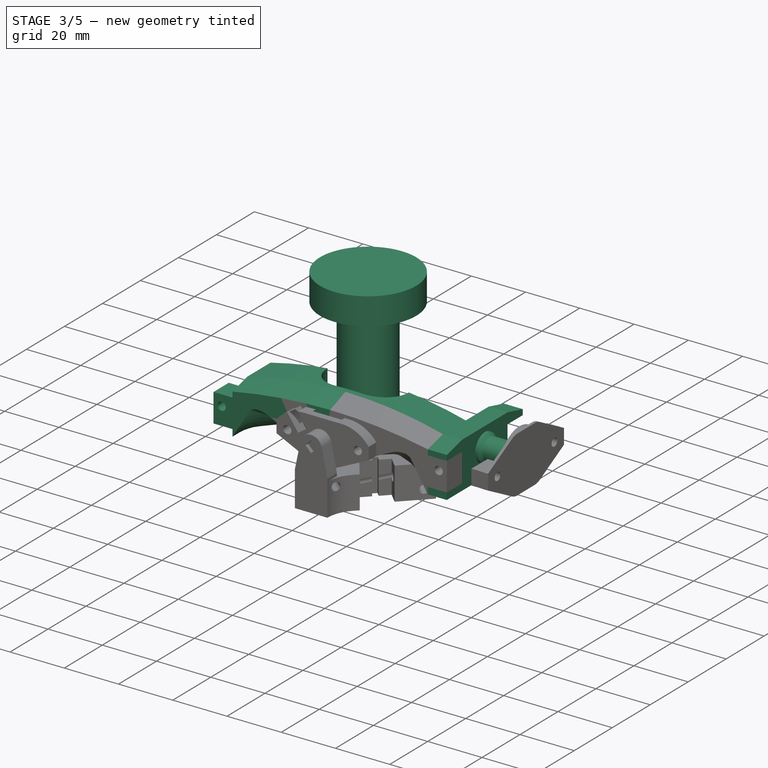
[diagram: stage 3 of 5 — iso view after this stage's code; geometry added in this stage tinted green]
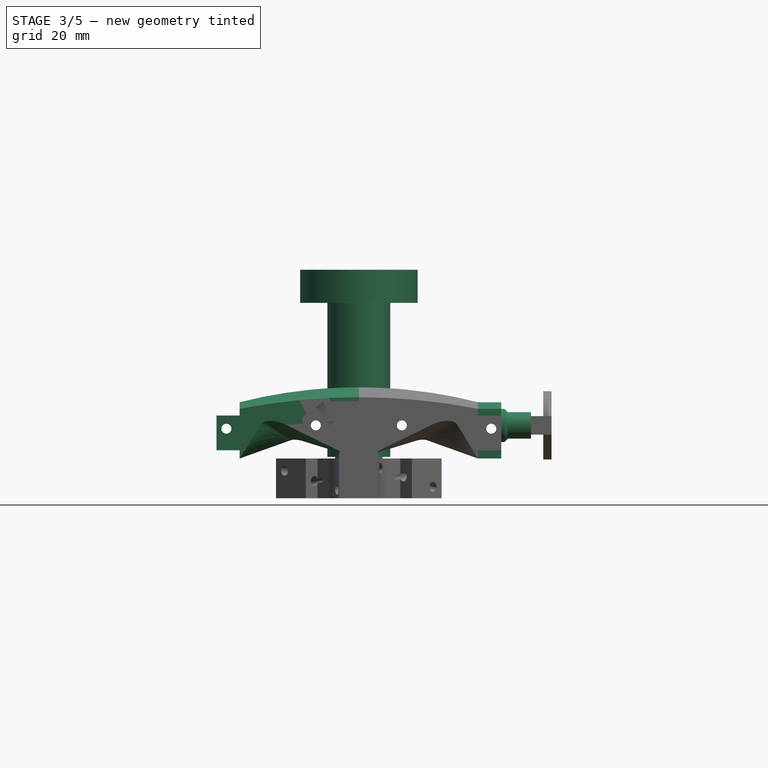
[diagram: stage 3 of 5 — front view after this stage's code; geometry added in this stage tinted green]
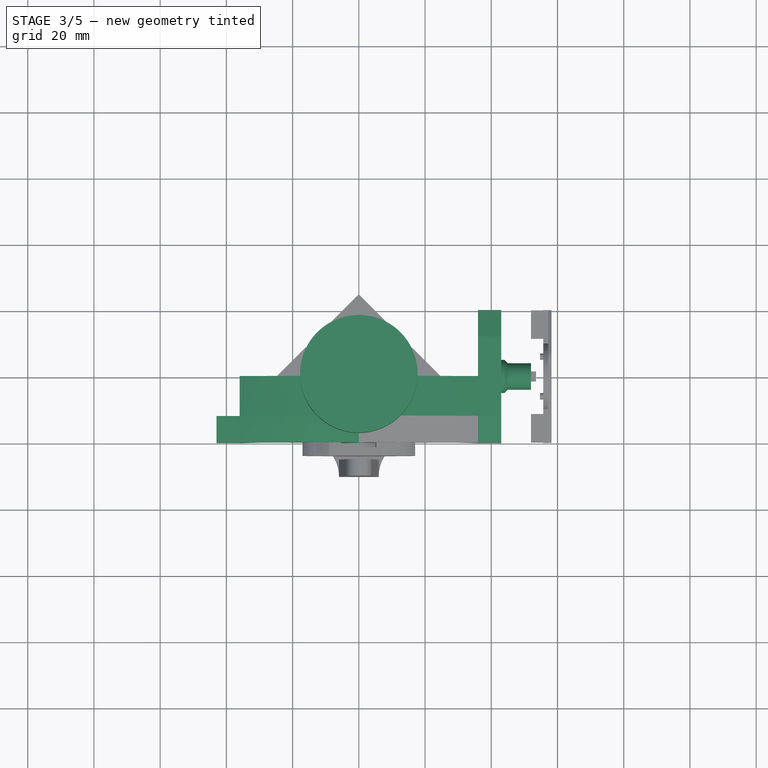
[diagram: stage 3 of 5 — top view after this stage's code; geometry added in this stage tinted green]
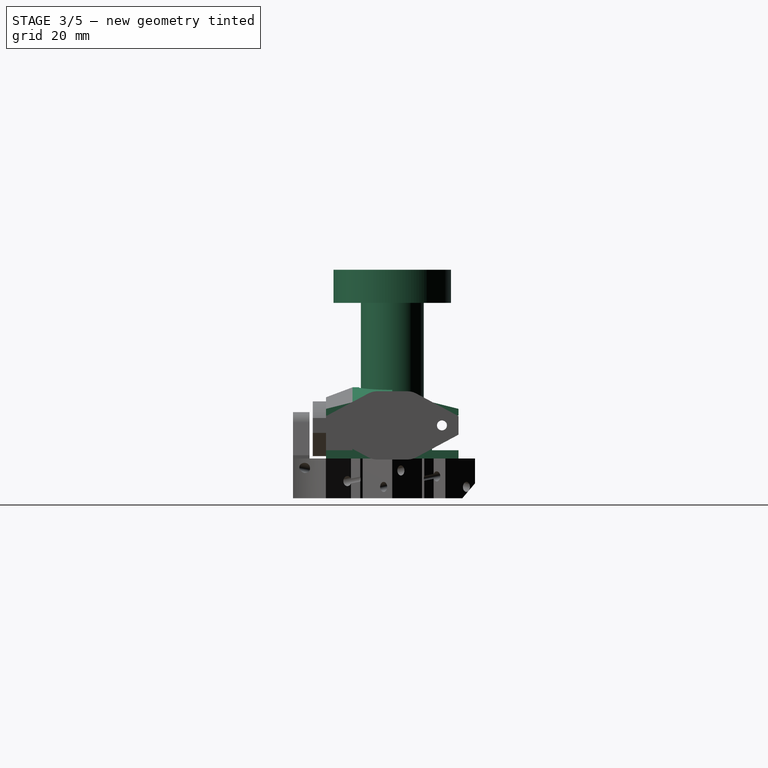
[diagram: stage 3 of 5 — right view after this stage's code; geometry added in this stage tinted green]
FEATURE [PartDesign::Body] Body002  label="604 Bearing"
  Group = -> [Sketch002,Pad002]
  Origin = -> Origin002
  Placement = pos=(0,0,-32) rot=(0,0,1;0rad)
  Tip = -> Pad002
FEATURE [Sketcher::SketchObject] Sketch101
  FullyConstrained = true
  MapMode = 5
  Placement = pos=(0,0,0) rot=(0.57735,0.57735,0.57735;2.0944rad)
  Support = -> [YZ_Plane027]
  sketch-geometry (8):
    g0: LineSegment StartX=-7.15 StartY=-9.5 StartZ=0 EndX=-9.5 EndY=-9.5 EndZ=0
    g1: LineSegment StartX=-9.5 StartY=-9.5 StartZ=0 EndX=-9.5 EndY=37 EndZ=0
    g2: LineSegment StartX=-7.15 StartY=-9.5 StartZ=0 EndX=-7.15 EndY=-21.8 EndZ=0
    g3: LineSegment StartX=-7.15 StartY=-21.8 StartZ=0 EndX=0 EndY=-21.8 EndZ=0
    g4: LineSegment StartX=0 StartY=-21.8 StartZ=0 EndX=0 EndY=47 EndZ=0
    g5: LineSegment StartX=0 StartY=47 StartZ=0 EndX=-17.75 EndY=47 EndZ=0
    g6: LineSegment StartX=-17.75 StartY=47 StartZ=0 EndX=-17.75 EndY=37 EndZ=0
    g7: LineSegment StartX=-17.75 StartY=37 StartZ=0 EndX=-9.5 EndY=37 EndZ=0
  constraints (24):
    c: Coincident(g0,g1)
    c: Horizontal(g0)
    c: Vertical(g1)
    c: Coincident(g2,g0)
    c: Vertical(g2)
    c: Coincident(g3,g2)
    c: PointOnObject(g3,g-2)
    c: Coincident(g4,g3)
    c: Vertical(g4)
    c: Coincident(g5,g4)
    c: Horizontal(g5)
    c: Coincident(g6,g5)
    c: Vertical(g6)
    c: Coincident(g7,g6)
    c: Horizontal(g7)
    c: Coincident(g7,g1)
    c: Horizontal(g3)
    c: DistanceX(g2,g3) = 7.15
    c: DistanceX(g0,g3) = 9.5
    c: DistanceY(g2,g6) = 58.8
    c: DistanceY(g6,g6) = 10
    c: DistanceX(g5,g5) = 17.75
    c: DistanceY(g0,g-1) = 9.5
    c: DistanceY(g2,g2) = 12.3
FEATURE [PartDesign::Revolution] Revolution001
  Angle = 360
  Axis = (-2e-16,3e-16,1)
  Base = (0,0,0)
  Placement = pos=(0,0,0) rot=(0.57735,0.57735,0.57735;2.0944rad)
  Profile = -> Sketch101
  ReferenceAxis = -> Sketch101 [V_Axis]
FEATURE [PartDesign::Body] Body033  label="Ref_PCB"
  Group = -> [Sketch123,Pad041]
  Origin = -> Origin033
  Placement = pos=(0,0,0) rot=(0,0,1;3.14159rad)
  Tip = -> Pad041
FEATURE [Sketcher::SketchObject] Sketch152
  FullyConstrained = true
  MapMode = 5
  Placement = pos=(0,0,0) rot=(1,0,0;1.5708rad)
  Support = -> [XZ_Plane018]
  sketch-geometry (1):
    g0: Circle CenterX=40 CenterY=-1 CenterZ=0 NormalX=0 NormalY=0 NormalZ=1 AngleXU=0 Radius=1.5
  constraints (3):
    c: DistanceY(g-1,g0) = -1
    c: Radius(g0) = 1.5
    c: DistanceX(g-1,g0) = 40
FEATURE [Sketcher::SketchObject] Sketch153
  FullyConstrained = true
  MapMode = 5
  Placement = pos=(0,0,0) rot=(1,0,0;1.5708rad)
  Support = -> [XZ_Plane018]
  sketch-geometry (4):
    g0: LineSegment StartX=43 StartY=7 StartZ=0 EndX=43 EndY=-10 EndZ=0
    g1: LineSegment StartX=43 StartY=-10 StartZ=0 EndX=36 EndY=-10 EndZ=0
    g2: LineSegment StartX=36 StartY=-10 StartZ=0 EndX=36 EndY=7 EndZ=0
    g3: LineSegment StartX=43 StartY=7 StartZ=0 EndX=36 EndY=7 EndZ=0
  constraints (12):
    c: Coincident(g0,g1)
    c: Coincident(g1,g2)
    c: Horizontal(g1)
    c: Vertical(g2)
    c: DistanceX(g1,g1) = 7
    c: DistanceX(g-1,g0) = 43
    c: Coincident(g3,g0)
    c: Coincident(g3,g2)
    c: Horizontal(g3)
    c: DistanceY(g0,g-1) = 10
    c: DistanceY(g-1,g0) = 7
    c: Vertical(g0)
FEATURE [PartDesign::Pad] Pad051
  Direction = (0,-1,-2e-16)
  Length = 40
  Length2 = 10
  Midplane = true
  Placement = pos=(0,0,0) rot=(1,0,0;1.5708rad)
  Profile = -> Sketch153
  ReferenceAxis = -> Sketch153 [N_Axis]
  Type = 0
FEATURE [PartDesign::Pocket] Pocket087
  BaseFeature = -> Pad051
  Direction = (0,1,2e-16)
  Length = 40
  Length2 = 5
  Midplane = true
  Placement = pos=(0,0,0) rot=(1,0,0;1.5708rad)
  Profile = -> Sketch152
  ReferenceAxis = -> Sketch152 [N_Axis]
  Type = 0
FEATURE [Sketcher::SketchObject] Sketch250
  FullyConstrained = true
  MapMode = 5
  Placement = pos=(0,0,0) rot=(1,0,0;1.5708rad)
  Support = -> [XZ_Plane018]
  sketch-geometry (6):
    g0: LineSegment StartX=52 StartY=0 StartZ=0 EndX=43 EndY=0 EndZ=0
    g1: LineSegment StartX=45 StartY=4 StartZ=0 EndX=52 EndY=4 EndZ=0
    g2: LineSegment StartX=52 StartY=4 StartZ=0 EndX=52 EndY=0 EndZ=0
    g3: LineSegment StartX=44 StartY=5 StartZ=0 EndX=43 EndY=5 EndZ=0
    g4: LineSegment StartX=43 StartY=5 StartZ=0 EndX=43 EndY=0 EndZ=0
    g5: LineSegment StartX=44 StartY=5 StartZ=0 EndX=45 EndY=4 EndZ=0
  constraints (18):
    c: Coincident(g1,g2)
    c: Coincident(g2,g0)
    c: Horizontal(g0)
    c: Horizontal(g1)
    c: Vertical(g2)
    c: PointOnObject(g0,g-1)
    c: Coincident(g4,g3)
    c: Coincident(g4,g0)
    c: Vertical(g4)
    c: Horizontal(g3)
    c: DistanceX(g3,g3) = 1
    c: DistanceY(g1,g3) = 1
    c: DistanceY(g2,g2) = 4
    c: DistanceX(g-1,g0) = 43
    c: DistanceX(g0,g0) = 9
    c: Coincident(g5,g3)
    c: Coincident(g5,g1)
    c: DistanceX(g3,g1) = 1
FEATURE [PartDesign::Revolution] Revolution004
  Angle = 360
  Axis = (1,0,0)
  Base = (0,0,0)
  BaseFeature = -> Pocket087
  Placement = pos=(0,0,0) rot=(1,0,0;1.5708rad)
  Profile = -> Sketch250
  ReferenceAxis = -> Sketch250 [H_Axis]
FEATURE [Sketcher::SketchObject] Sketch265
  AttachmentOffset = pos=(0,0,20) rot=(0,0,1;0rad)
  FullyConstrained = true
  MapMode = 5
  Placement = pos=(0,-20,-4.4e-15) rot=(1,0,0;1.5708rad)
  Support = -> [XZ_Plane028]
  sketch-geometry (15):
    g0: LineSegment StartX=43 StartY=3 StartZ=0 EndX=43 EndY=-7.5 EndZ=0
    g1: LineSegment StartX=29.7087 StartY=0.219261 StartZ=0 EndX=36 EndY=-10 EndZ=0
    g2: LineSegment StartX=36 StartY=-10 StartZ=0 EndX=36 EndY=-7.5 EndZ=0
    g3: LineSegment StartX=36 StartY=-7.5 StartZ=0 EndX=43 EndY=-7.5 EndZ=0
    g4: LineSegment StartX=36 StartY=5 StartZ=0 EndX=36 EndY=3 EndZ=0
    g5: LineSegment StartX=36 StartY=3 StartZ=0 EndX=43 EndY=3 EndZ=0
    g6: ArcOfCircle CenterX=0 CenterY=0 CenterZ=0 NormalX=0 NormalY=0 NormalZ=1 AngleXU=0 Radius=9.5 StartAngle=4.71239 EndAngle=5.16617
    g7: ArcOfEllipse CenterX=23.5 CenterY=-3 CenterZ=0 NormalX=0 NormalY=0 NormalZ=1 MajorRadius=7 MinorRadius=3.4981 AngleXU=0.453786 StartAngle=0.0491164 EndAngle=1.5708
    g8: LineSegment StartX=29.7916 StartY=0.068598 StartZ=0 EndX=17.2084 EndY=-6.0686 EndZ=0
    g9: LineSegment StartX=21.9665 StartY=0.144075 StartZ=0 EndX=25.0335 EndY=-6.14408 EndZ=0
    g10: GeomPoint X=28.9496 Y=-0.342036 Z=0
    g11: GeomPoint X=18.0504 Y=-5.65796 Z=0
    g12: LineSegment StartX=21.9665 StartY=0.144075 StartZ=0 EndX=4.16453 EndY=-8.53854 EndZ=0
    g13: LineSegment StartX=1.14e-14 StartY=-9.5 StartZ=0 EndX=1.14e-14 EndY=8.5 EndZ=0
    g14: ArcOfCircle CenterX=0 CenterY=-178.393 CenterZ=0 NormalX=0 NormalY=0 NormalZ=1 AngleXU=0 Radius=186.893 StartAngle=1.37696 EndAngle=1.5708
  constraints (35):
    c: DistanceY(g0,g-1) = 7.5
    c: Coincident(g2,g1)
    c: Vertical(g2)
    c: Coincident(g3,g2)
    c: Coincident(g3,g0)
    c: DistanceX(g2,g0) = 7
    c: DistanceY(g2,g2) = 2.5
    c: Vertical(g4)
    c: Coincident(g5,g4)
    c: Horizontal(g5)
    c: Vertical(g4,g2)
    c: Coincident(g0,g5)
    c: DistanceY(g-1,g0) = 3
    c: DistanceX(g-1,g0) = 43
    c: Horizontal(g3)
    c: DistanceY(g4,g4) = 2
    c: Coincident(g6,g-1)
    c: Radius(g6) = 9.5
    c: InternalAlignment(g8-g11 -> g7) x4
    c: Tangent(g12,g7) = -1.5708
    c: PointOnObject(g13,g-2)
    c: Coincident(g13,g6)
    c: Vertical(g13)
    c: DistanceY(g-1,g13) = 8.5
    c: Vertical(g0)
    c: DistanceY(g7,g-1) = 3
    c: DistanceX(g-1,g7) = 23.5
    c: Tangent(g12,g6) = 1.5708
    c: Angle(g-1,g8) = 0.453786
    c: Distance(g8,g7) = 7
    c: Parallel(g12,g8)
    c: Tangent(g1,g7) = 1.5708
    c: PointOnObject(g14,g-2)
    c: Coincident(g14,g13)
    c: Coincident(g14,g4)
FEATURE [PartDesign::Plane] DatumPlane
  AttachmentOffset = pos=(0,0,0) rot=(0,1,0;0.785398rad)
  Length = 86.432
  MapMode = 5
  Placement = pos=(0,0,0) rot=(0.862856,0.357407,0.357407;1.71777rad)
  ResizeMode = 0
  Support = -> [XZ_Plane045]
  Width = 62.1857
FEATURE [Sketcher::SketchObject] Sketch266
  AttachmentOffset = pos=(0,0,4) rot=(1,0,0;0.139626rad)
  FullyConstrained = true
  MapMode = 5
  Placement = pos=(2.82843,-2.82843,-9e-16) rot=(0.876646,0.363118,0.315654;1.83925rad)
  Support = -> [DatumPlane]
  sketch-geometry (1):
    g0: Circle CenterX=14 CenterY=-16.5 CenterZ=0 NormalX=0 NormalY=0 NormalZ=1 AngleXU=0 Radius=1.5
  constraints (3):
    c: Radius(g0) = 1.5
    c: DistanceX(g-1,g0) = 14
    c: DistanceY(g0,g-1) = 16.5
FEATURE [Sketcher::SketchObject] Sketch267
  AttachmentOffset = pos=(0,0,12) rot=(0,0,1;0rad)
  FullyConstrained = true
  MapMode = 5
  Placement = pos=(0,-12,-2.7e-15) rot=(1,0,0;1.5708rad)
  Support = -> [XZ_Plane018]
  sketch-geometry (4):
    g0: LineSegment StartX=43 StartY=-7.5 StartZ=0 EndX=36 EndY=-7.49999 EndZ=0
    g1: LineSegment StartX=36 StartY=-7.49999 StartZ=0 EndX=36 EndY=3 EndZ=0
    g2: LineSegment StartX=36 StartY=3 StartZ=0 EndX=43 EndY=3 EndZ=0
    g3: LineSegment StartX=43 StartY=3 StartZ=0 EndX=43 EndY=-7.5 EndZ=0
  constraints (12):
    c: DistanceY(g0,g-1) = 7.5
    c: Coincident(g1,g0)
    c: Vertical(g1)
    c: Coincident(g2,g1)
    c: Coincident(g3,g2)
    c: Coincident(g3,g0)
    c: Vertical(g3)
    c: DistanceY(g-1,g2) = 3
    c: Equal(g2,g0)
    c: DistanceX(g0,g0) = 7
    c: DistanceX(g-1,g0) = 43
    c: Horizontal(g2)
FEATURE [PartDesign::Pocket] Pocket161
  BaseFeature = -> Revolution004
  Direction = (0,1,2e-16)
  Length = 10
  Length2 = 5
  Placement = pos=(0,0,0) rot=(1,0,0;1.5708rad)
  Profile = -> Sketch267
  ReferenceAxis = -> Sketch267 [N_Axis]
  Reversed = true
  Type = 0
FEATURE [PartDesign::Mirrored] Mirrored
  BaseFeature = -> Pocket161
  MirrorPlane = -> XZ_Plane018
  Originals = -> [Pocket161]
  Placement = pos=(0,0,0) rot=(1,0,0;1.5708rad)
FEATURE [PartDesign::Chamfer] Chamfer042
  Angle = 45
  Base = -> Mirrored [Edge14,Edge37]
  BaseFeature = -> Mirrored
  ChamferType = 1
  FlipDirection = false
  Placement = pos=(0,0,0) rot=(1,0,0;1.5708rad)
  Size = 2
  Size2 = 8
  SupportTransform = false
  UseAllEdges = false
FEATURE [PartDesign::Body] Body049  label="Ref_AS5600Inner"
  Group = -> [Sketch270,Pad091,Sketch271,Pad092]
  Origin = -> Origin054
  Placement = pos=(5.2e-14,-21.5,0) rot=(0.707107,0.707107,0;3.14159rad)
  Tip = -> Pad092
FEATURE [Sketcher::SketchObject] Sketch272
  FullyConstrained = true
  MapMode = 5
  Placement = pos=(0,0,0) rot=(0.57735,0.57735,0.57735;2.0944rad)
  Support = -> [YZ_Plane045]
  sketch-geometry (3):
    g0: LineSegment StartX=20.3 StartY=-23 StartZ=0 EndX=26 EndY=-16.3 EndZ=0
    g1: LineSegment StartX=26 StartY=-16.3 StartZ=0 EndX=26 EndY=-23 EndZ=0
    g2: LineSegment StartX=20.3 StartY=-23 StartZ=0 EndX=26 EndY=-23 EndZ=0
  constraints (9):
    c: Coincident(g1,g0)
    c: Vertical(g1)
    c: Coincident(g2,g0)
    c: Coincident(g2,g1)
    c: Horizontal(g2)
    c: DistanceX(g-1,g1) = 26
    c: DistanceY(g1,g-1) = 23
    c: DistanceY(g1,g1) = 6.7
    c: DistanceX(g2,g2) = 5.7
FEATURE [Sketcher::SketchObject] Sketch274
  FullyConstrained = true
  MapMode = 5
  Placement = pos=(0,0,0) rot=(0.57735,0.57735,0.57735;2.0944rad)
  Support = -> [YZ_Plane055]
  sketch-geometry (8):
    g0: LineSegment StartX=-7.48331 StartY=-5 StartZ=0 EndX=-7.48331 EndY=5 EndZ=0
    g1: ArcOfCircle CenterX=0 CenterY=0 CenterZ=0 NormalX=0 NormalY=0 NormalZ=1 AngleXU=0 Radius=9 StartAngle=3.73062 EndAngle=4.25183
    g2: LineSegment StartX=7.48331 StartY=5 StartZ=0 EndX=7.48331 EndY=-5 EndZ=0
    g3: LineSegment StartX=-4 StartY=-8.06226 StartZ=0 EndX=4 EndY=-8.06226 EndZ=0
    g4: ArcOfCircle CenterX=0 CenterY=0 CenterZ=0 NormalX=0 NormalY=0 NormalZ=1 AngleXU=0 Radius=9 StartAngle=5.17294 EndAngle=5.69415
    g5: ArcOfCircle CenterX=0 CenterY=0 CenterZ=0 NormalX=0 NormalY=0 NormalZ=1 AngleXU=0 Radius=9 StartAngle=0.589031 EndAngle=2.55256
    g6: Circle CenterX=6 CenterY=0 CenterZ=0 NormalX=0 NormalY=0 NormalZ=1 AngleXU=0 Radius=1
    g7: Circle CenterX=-6 CenterY=0 CenterZ=0 NormalX=0 NormalY=0 NormalZ=1 AngleXU=0 Radius=1
  constraints (21):
    c: Coincident(g1,g0)
    c: Vertical(g2)
    c: Coincident(g3,g1)
    c: Coincident(g4,g2)
    c: Coincident(g4,g3)
    c: Symmetric(g0,g0,g-1)
    c: Symmetric(g3,g1,g-2)
    c: Horizontal(g2,g0)
    c: Coincident(g5,g0)
    c: Coincident(g5,g2)
    c: Radius(g5) = 9
    c: DistanceY(g2,g2) = 10
    c: DistanceX(g3,g3) = 8
    c: Coincident(g1,g5)
    c: Coincident(g1,g4)
    c: Coincident(g1,g-1)
    c: PointOnObject(g6,g-1)
    c: Equal(g6,g7)
    c: Radius(g6) = 1
    c: Symmetric(g6,g7,g-2)
    c: DistanceX(g-1,g6) = 6
FEATURE [PartDesign::Pad] Pad093
  Direction = (1,-2e-16,3e-16)
  Length = 1.5
  Length2 = 10
  Placement = pos=(0,0,0) rot=(0.57735,0.57735,0.57735;2.0944rad)
  Profile = -> Sketch274
  ReferenceAxis = -> Sketch274 [N_Axis]
  Type = 0
FEATURE [Sketcher::SketchObject] Sketch275
  FullyConstrained = true
  MapMode = 5
  Placement = pos=(0,0,0) rot=(0.57735,0.57735,0.57735;2.0944rad)
  Support = -> [YZ_Plane055]
  sketch-geometry (4):
    g0: LineSegment StartX=-2.5 StartY=3.5 StartZ=0 EndX=2.5 EndY=3.5 EndZ=0
    g1: LineSegment StartX=2.5 StartY=3.5 StartZ=0 EndX=2.5 EndY=-3.5 EndZ=0
    g2: LineSegment StartX=2.5 StartY=-3.5 StartZ=0 EndX=-2.5 EndY=-3.5 EndZ=0
    g3: LineSegment StartX=-2.5 StartY=-3.5 StartZ=0 EndX=-2.5 EndY=3.5 EndZ=0
  constraints (11):
    c: Coincident(g0,g1)
    c: Coincident(g1,g2)
    c: Coincident(g2,g3)
    c: Coincident(g3,g0)
    c: Horizontal(g0)
    c: Horizontal(g2)
    c: Vertical(g1)
    c: Vertical(g3)
    c: Symmetric(g1,g0,g-1)
    c: DistanceX(g2,g2) = 5
    c: DistanceY(g1,g1) = 7
FEATURE [PartDesign::Pad] Pad094
  BaseFeature = -> Pad093
  Direction = (1,-2e-16,3e-16)
  Length = 1.8
  Length2 = 10
  Midplane = true
  Placement = pos=(0,0,0) rot=(0.57735,0.57735,0.57735;2.0944rad)
  Profile = -> Sketch275
  ReferenceAxis = -> Sketch275 [N_Axis]
  Type = 0
FEATURE [PartDesign::Body] Body050  label="Ref_AS5600Outer"
  Group = -> [Sketch274,Pad093,Sketch275,Pad094]
  Origin = -> Origin055
  Placement = pos=(55.509,-7e-15,-0.0312391) rot=(0.999962,0,0.008727;3.14159rad)
  Tip = -> Pad094
FEATURE [Sketcher::SketchObject] Sketch276
  FullyConstrained = true
  MapMode = 5
  Placement = pos=(52,0,0) rot=(0.707107,0,0.707107;3.14159rad)
  Support = -> [Chamfer042]
  sketch-geometry (4):
    g0: LineSegment StartX=-1.5 StartY=1.5 StartZ=0 EndX=1.5 EndY=1.5 EndZ=0
    g1: LineSegment StartX=1.5 StartY=1.5 StartZ=0 EndX=1.5 EndY=-1.5 EndZ=0
    g2: LineSegment StartX=1.5 StartY=-1.5 StartZ=0 EndX=-1.5 EndY=-1.5 EndZ=0
    g3: LineSegment StartX=-1.5 StartY=-1.5 StartZ=0 EndX=-1.5 EndY=1.5 EndZ=0
  constraints (11):
    c: Coincident(g0,g1)
    c: Coincident(g1,g2)
    c: Coincident(g2,g3)
    c: Coincident(g3,g0)
    c: Horizontal(g0)
    c: Horizontal(g2)
    c: Vertical(g1)
    c: Vertical(g3)
    c: Symmetric(g1,g0,g-1)
    c: Equal(g0,g1)
    c: DistanceX(g0,g0) = 3
FEATURE [PartDesign::Pocket] Pocket164
  BaseFeature = -> Chamfer042
  Direction = (-1,0,2e-16)
  Length = 2
  Length2 = 5
  Placement = pos=(0,0,0) rot=(1,0,0;1.5708rad)
  Profile = -> Sketch276
  ReferenceAxis = -> Sketch276 [N_Axis]
  Type = 0
FEATURE [PartDesign::Chamfer] Chamfer
  Angle = 45
  Base = -> Pocket164 [Edge55,Edge54,Edge53,Edge56]
  BaseFeature = -> Pocket164
  ChamferType = 0
  FlipDirection = false
  Placement = pos=(0,0,0) rot=(1,0,0;1.5708rad)
  Size = 0.4
  Size2 = 1
  SupportTransform = false
  UseAllEdges = false
FEATURE [PartDesign::Pocket] Pocket
  BaseFeature = -> Pocket056
  Direction = (0,1,2e-16)
  Length = 20
  Length2 = 5
  Placement = pos=(0,0,0) rot=(1,0,0;1.5708rad)
  Profile = -> Sketch268
  ReferenceAxis = -> Sketch268 [N_Axis]
  Reversed = true
  Type = 0
FEATURE [Sketcher::SketchObject] Sketch269
  AttachmentOffset = pos=(0,0,12) rot=(0,0,1;0rad)
  ExternalGeometry = -> [Pocket]
  FullyConstrained = true
  MapMode = 5
  Placement = pos=(0,-12,-2.7e-15) rot=(1,0,0;1.5708rad)
  Support = -> [XZ_Plane028]
  sketch-geometry (17):
    g0: LineSegment StartX=36 StartY=-10 StartZ=0 EndX=36 EndY=7 EndZ=0
    g1: LineSegment StartX=17.1388 StartY=-4.68212 StartZ=0 EndX=2.78452 EndY=-9.08275 EndZ=0
    g2: LineSegment StartX=1.29722 StartY=-5.34483 StartZ=0 EndX=17.1388 EndY=-1.5 EndZ=0
    g3: LineSegment StartX=17.1388 StartY=-1.5 StartZ=0 EndX=25.5 EndY=-1.5 EndZ=0
    g4: ArcOfCircle CenterX=0 CenterY=0 CenterZ=0 NormalX=0 NormalY=0 NormalZ=1 AngleXU=0 Radius=9.5 StartAngle=4.71239 EndAngle=5.00986
    g5: LineSegment StartX=-1e-15 StartY=-5.5 StartZ=0 EndX=-1e-15 EndY=-9.5 EndZ=0
    g6: LineSegment StartX=25.5 StartY=5.5 StartZ=0 EndX=25.5 EndY=-1.5 EndZ=0
    g7: ArcOfCircle CenterX=0 CenterY=0 CenterZ=0 NormalX=0 NormalY=0 NormalZ=1 AngleXU=0 Radius=5.5 StartAngle=4.71239 EndAngle=4.95049
    g8: LineSegment StartX=9e-15 StartY=11.5 StartZ=0 EndX=0 EndY=5.5 EndZ=0
    g9: LineSegment StartX=0 StartY=5.5 StartZ=0 EndX=25.5 EndY=5.5 EndZ=0
    g10: ArcOfCircle CenterX=0 CenterY=-134.75 CenterZ=0 NormalX=0 NormalY=0 NormalZ=1 AngleXU=0 Radius=146.25 StartAngle=1.32209 EndAngle=1.5708
    g11: LineSegment StartX=36 StartY=-10 StartZ=0 EndX=20.5358 EndY=-4.47081 EndZ=0
    g12: ArcOfEllipse CenterX=16.4703 CenterY=-7.4924 CenterZ=0 NormalX=0 NormalY=0 NormalZ=1 MajorRadius=5.41539 MinorRadius=2.37282 AngleXU=0.453786 StartAngle=0.404381 EndAngle=1.22553
    g13: LineSegment StartX=21.3376 StartY=-5.11844 StartZ=0 EndX=11.603 EndY=-9.86635 EndZ=0
    g14: LineSegment StartX=15.4301 StartY=-5.35972 StartZ=0 EndX=17.5104 EndY=-9.62507 EndZ=0
    g15: GeomPoint X=20.8455 Y=-5.35846 Z=0
    g16: GeomPoint X=12.0951 Y=-9.62633 Z=0
  constraints (39):
    c: DistanceY(g-1,g0) = 7
    c: Vertical(g3,g6)
    c: DistanceX(g-1,g0) = 36
    c: Vertical(g0)
    c: Coincident(g3,g2)
    c: DistanceY(g0,g-1) = 10
    c: DistanceX(g-1,g6) = 25.5
    c: Coincident(g4,g-1)
    c: Radius(g4) = 9.5
    c: PointOnObject(g4,g-2)
    c: Coincident(g5,g4)
    c: Vertical(g5)
    c: PointOnObject(g8,g-2)
    c: Coincident(g6,g3)
    c: Horizontal(g3)
    c: DistanceY(g4,g8) = 11.5
    c: Coincident(g7,g4)
    c: Coincident(g7,g5)
    c: Tangent(g7,g2) = -1.5708
    c: Tangent(g4,g1) = 1.5708
    c: PointOnObject(g8,g-2)
    c: Coincident(g9,g8)
    c: Coincident(g9,g6)
    c: Horizontal(g9)
    c: DistanceY(g6,g6) = 7
    c: PointOnObject(g10,g-2)
    c: Coincident(g10,g8)
    c: Coincident(g10,g0)
    c: Coincident(g11,g0)
    c: DistanceY(g4,g8) = 5.5
    c: DistanceY(g5,g4) = 5.5
    c: InternalAlignment(g13-g16 -> g12) x4
    c: Coincident(g12,g-3)
    c: PointOnObject(g12,g-3)
    c: Tangent(g12,g11) = -1.5708
    c: Tangent(g12,g1) = -1.5708
    c: Vertical(g2,g1)
    c: PointOnObject(g1,g-3)
    c: Angle(g-1,g13) = 0.453786
FEATURE [PartDesign::Pad] Pad090
  BaseFeature = -> Pocket
  Direction = (0,-1,-2e-16)
  Length = 12
  Length2 = 10
  Placement = pos=(0,0,0) rot=(1,0,0;1.5708rad)
  Profile = -> Sketch269
  ReferenceAxis = -> Sketch269 [N_Axis]
  Reversed = true
  Type = 0
FEATURE [Sketcher::SketchObject] Sketch281
  AttachmentOffset = pos=(0,0,12) rot=(0,0,1;0rad)
  FullyConstrained = true
  MapMode = 5
  Placement = pos=(0,0,12) rot=(0,0,1;0rad)
  Support = -> [XY_Plane028]
  sketch-geometry (4):
    g0: ArcOfCircle CenterX=-5 CenterY=0 CenterZ=0 NormalX=0 NormalY=0 NormalZ=1 AngleXU=0 Radius=10 StartAngle=1.5708 EndAngle=4.71239
    g1: LineSegment StartX=5 StartY=-10 StartZ=0 EndX=-5 EndY=-10 EndZ=0
    g2: LineSegment StartX=-5 StartY=10 StartZ=0 EndX=5 EndY=10 EndZ=0
    g3: ArcOfCircle CenterX=5 CenterY=0 CenterZ=0 NormalX=0 NormalY=0 NormalZ=1 AngleXU=0 Radius=10 StartAngle=4.71239 EndAngle=7.85398
  constraints (11):
    c: PointOnObject(g0,g-1)
    c: Horizontal(g1)
    c: Radius(g0) = 10
    c: DistanceX(g0,g-1) = 5
    c: Horizontal(g2)
    c: Tangent(g1,g0) = 1.5708
    c: Tangent(g2,g0) = 1.5708
    c: PointOnObject(g3,g-1)
    c: Coincident(g3,g2)
    c: Tangent(g1,g3) = 1.5708
    c: DistanceX(g-1,g3) = 5
FEATURE [PartDesign::Pocket] Pocket166
  BaseFeature = -> Pad090
  Direction = (0,0,-1)
  Length = 23
  Length2 = 5
  Placement = pos=(0,0,0) rot=(1,0,0;1.5708rad)
  Profile = -> Sketch281
  ReferenceAxis = -> Sketch281 [N_Axis]
  Type = 0
FEATURE [Sketcher::SketchObject] Sketch282
  AttachmentOffset = pos=(0,0,-5) rot=(0,1,0;-0.296706rad)
  FullyConstrained = true
  MapMode = 5
  Placement = pos=(0,0,-5) rot=(0,1,0;5.98648rad)
  Support = -> [XY_Plane028]
  sketch-geometry (5):
    g0: LineSegment StartX=18.5 StartY=10 StartZ=0 EndX=28.5 EndY=0 EndZ=0
    g1: LineSegment StartX=28.5 StartY=0 StartZ=0 EndX=18.5 EndY=-10 EndZ=0
    g2: LineSegment StartX=18.5 StartY=10 StartZ=0 EndX=0 EndY=10 EndZ=0
    g3: LineSegment StartX=0 StartY=10 StartZ=0 EndX=0 EndY=-10 EndZ=0
    g4: LineSegment StartX=18.5 StartY=-10 StartZ=0 EndX=0 EndY=-10 EndZ=0
  constraints (14):
    c: Coincident(g1,g0)
    c: Symmetric(g1,g0,g-1)
    c: PointOnObject(g0,g-1)
    c: DistanceX(g-1,g0) = 28.5
    c: Perpendicular(g0,g1)
    c: Coincident(g2,g0)
    c: Horizontal(g2)
    c: Coincident(g3,g2)
    c: Coincident(g4,g1)
    c: Coincident(g4,g3)
    c: Horizontal(g4)
    c: Vertical(g3)
    c: PointOnObject(g3,g-2)
    c: DistanceY(g3,g3) = 20
FEATURE [PartDesign::Pocket] Pocket167
  BaseFeature = -> Pocket166
  Direction = (0.292372,0,-0.956305)
  Length = 14
  Length2 = 5
  Placement = pos=(0,0,0) rot=(1,0,0;1.5708rad)
  Profile = -> Sketch282
  ReferenceAxis = -> Sketch282 [N_Axis]
  Type = 0
FEATURE [PartDesign::Chamfer] Chamfer043
  Angle = 45
  Base = -> Pocket167 [Edge73,Edge76]
  BaseFeature = -> Pocket167
  ChamferType = 0
  FlipDirection = false
  Placement = pos=(0,0,0) rot=(1,0,0;1.5708rad)
  Size = 0.55
  Size2 = 1
  SupportTransform = false
  UseAllEdges = false
FEATURE [PartDesign::Mirrored] Mirrored010
  BaseFeature = -> Chamfer043
  MirrorPlane = -> Sketch103 [V_Axis]
  Originals = -> [AdditiveLoft,Pocket058,Pocket056,Pocket,Pad090,Pocket166,Pocket167,Chamfer043]
  Placement = pos=(0,0,0) rot=(1,0,0;1.5708rad)
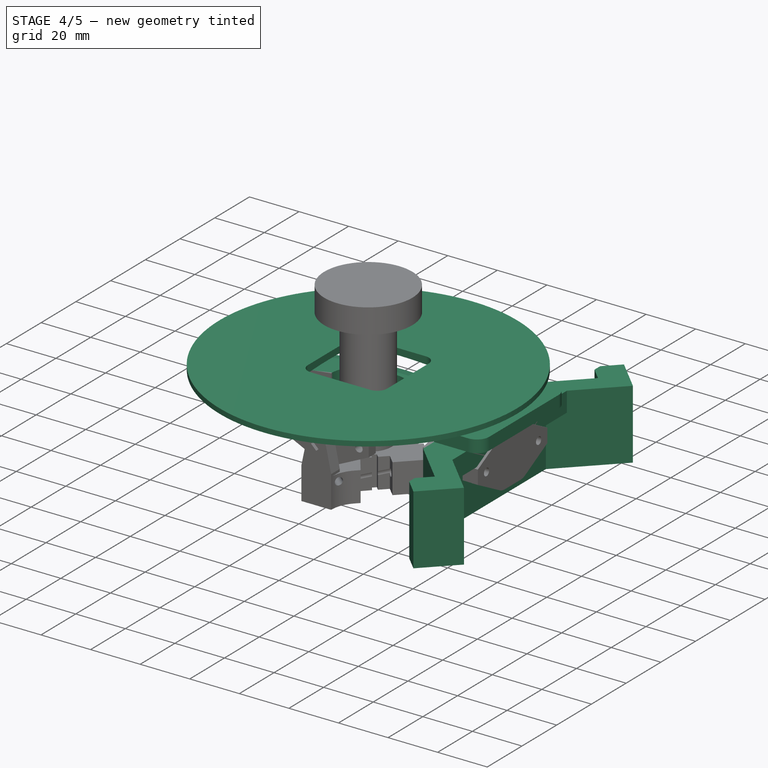
[diagram: stage 4 of 5 — iso view after this stage's code; geometry added in this stage tinted green]
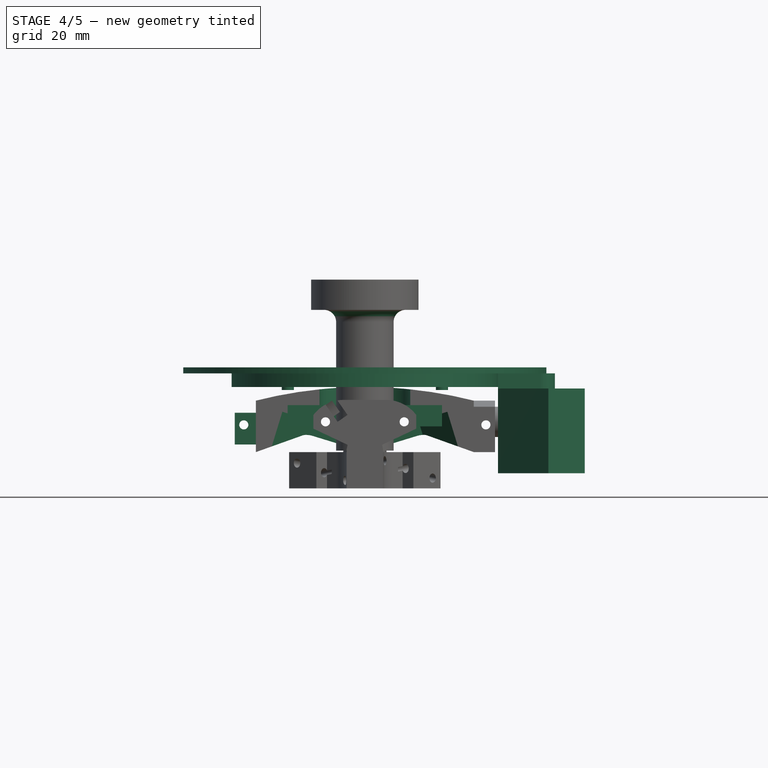
[diagram: stage 4 of 5 — front view after this stage's code; geometry added in this stage tinted green]
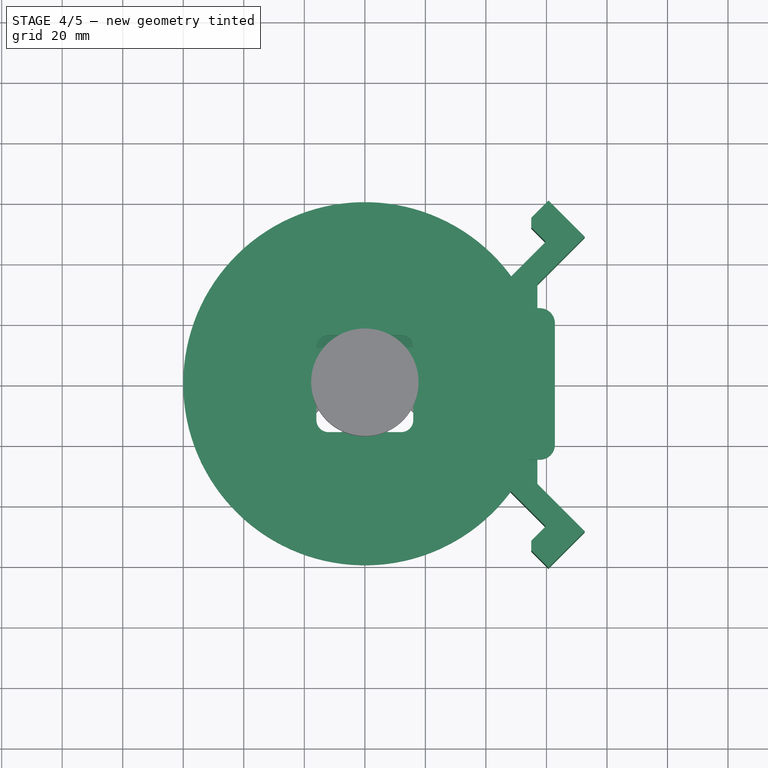
[diagram: stage 4 of 5 — top view after this stage's code; geometry added in this stage tinted green]
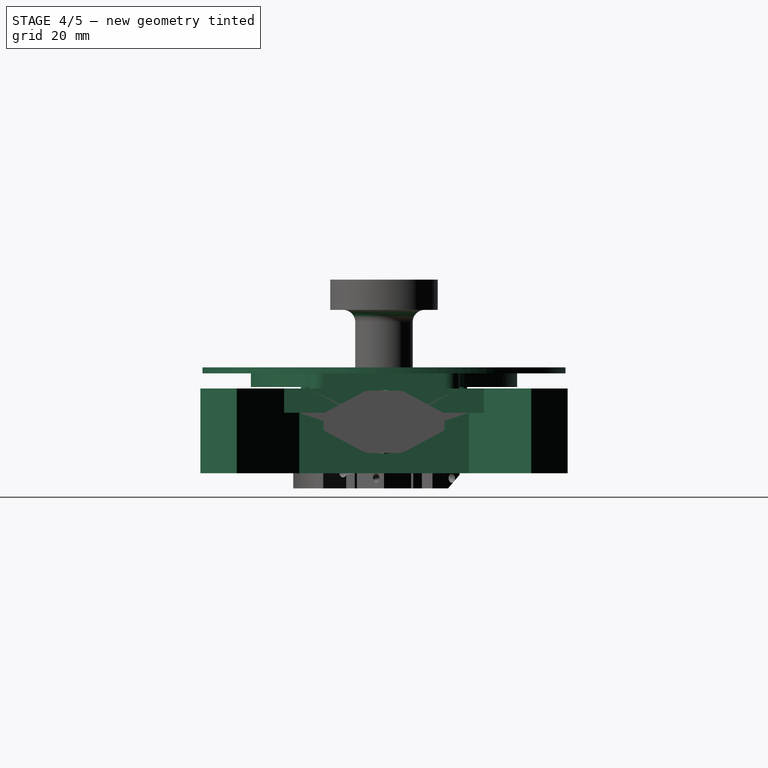
[diagram: stage 4 of 5 — right view after this stage's code; geometry added in this stage tinted green]
FEATURE [Sketcher::SketchObject] Sketch102
  ExternalGeometry = -> [Revolution001]
  FullyConstrained = true
  MapMode = 5
  Placement = pos=(0,0,0) rot=(1,0,0;1.5708rad)
  Support = -> [XZ_Plane027]
  sketch-geometry (1):
    g0: Circle CenterX=0 CenterY=0 CenterZ=0 NormalX=0 NormalY=0 NormalZ=1 AngleXU=0 Radius=5
  constraints (2):
    c: Radius(g0) = 5
    c: Coincident(g0,g-1)
FEATURE [PartDesign::Pad] Pad032
  BaseFeature = -> Revolution001
  Direction = (0,-1,-2e-16)
  Length = 24
  Length2 = 10
  Midplane = true
  Placement = pos=(0,0,0) rot=(0.57735,0.57735,0.57735;2.0944rad)
  Profile = -> Sketch102
  ReferenceAxis = -> Sketch102 [N_Axis]
  Type = 0
FEATURE [PartDesign::Fillet] Fillet001
  Base = -> Pad032 [Edge9]
  BaseFeature = -> Pad032
  Placement = pos=(0,0,0) rot=(0.57735,0.57735,0.57735;2.0944rad)
  Radius = 4
  SupportTransform = false
  UseAllEdges = false
FEATURE [PartDesign::Body] Body030  label="Ref_BottomPlate"
  Group = -> [Sketch112,Pad037]
  Origin = -> Origin030
  Tip = -> Pad037
FEATURE [Sketcher::SketchObject] Sketch113
  FullyConstrained = true
  MapMode = 5
  Placement = pos=(0,0,0) rot=(1,0,0;1.5708rad)
  Support = -> [XZ_Plane031]
  sketch-geometry (6):
    g0: ArcOfCircle CenterX=0 CenterY=-201.361 CenterZ=0 NormalX=0 NormalY=0 NormalZ=1 AngleXU=0 Radius=217.361 StartAngle=1.5708 EndAngle=1.77463
    g1: LineSegment StartX=-44 StartY=11.5 StartZ=0 EndX=-44 EndY=16 EndZ=0
    g2: LineSegment StartX=-44 StartY=16 StartZ=0 EndX=-60 EndY=16 EndZ=0
    g3: LineSegment StartX=-60 StartY=16 StartZ=0 EndX=-60 EndY=18 EndZ=0
    g4: LineSegment StartX=1.581e-13 StartY=18 StartZ=0 EndX=-60 EndY=18 EndZ=0
    g5: LineSegment StartX=1.581e-13 StartY=16 StartZ=0 EndX=1.581e-13 EndY=18 EndZ=0
  constraints (19):
    c: PointOnObject(g0,g-2)
    c: Coincident(g1,g0)
    c: Vertical(g1)
    c: Coincident(g2,g1)
    c: Horizontal(g2)
    c: Coincident(g3,g2)
    c: Vertical(g3)
    c: Horizontal(g4)
    c: Coincident(g3,g4)
    c: DistanceY(g3,g3) = 2
    c: Coincident(g5,g0)
    c: Vertical(g5)
    c: Coincident(g4,g5)
    c: DistanceX(g1,g-1) = 44
    c: DistanceY(g1,g1) = 4.5
    c: DistanceY(g-1,g2) = 16
    c: Horizontal(g0,g1)
    c: DistanceX(g3,g-1) = 60
    c: PointOnObject(g0,g-2)
FEATURE [PartDesign::Revolution] Revolution002
  Angle = 360
  Axis = (0,-2e-16,1)
  Base = (0,0,0)
  Placement = pos=(0,0,0) rot=(1,0,0;1.5708rad)
  Profile = -> Sketch113
  ReferenceAxis = -> Sketch113 [V_Axis]
FEATURE [Sketcher::SketchObject] Sketch114
  FullyConstrained = true
  MapMode = 5
  Support = -> [XY_Plane031]
  sketch-geometry (8):
    g0: LineSegment StartX=-12 StartY=16 StartZ=0 EndX=12 EndY=16 EndZ=0
    g1: LineSegment StartX=16 StartY=12 StartZ=0 EndX=16 EndY=-12 EndZ=0
    g2: LineSegment StartX=12 StartY=-16 StartZ=0 EndX=-12 EndY=-16 EndZ=0
    g3: LineSegment StartX=-16 StartY=-12 StartZ=0 EndX=-16 EndY=12 EndZ=0
    g4: ArcOfCircle CenterX=12 CenterY=12 CenterZ=0 NormalX=0 NormalY=0 NormalZ=1 AngleXU=0 Radius=4 StartAngle=0 EndAngle=1.5708
    g5: ArcOfCircle CenterX=-12 CenterY=12 CenterZ=0 NormalX=0 NormalY=0 NormalZ=1 AngleXU=0 Radius=4 StartAngle=1.5708 EndAngle=3.14159
    g6: ArcOfCircle CenterX=12 CenterY=-12 CenterZ=0 NormalX=0 NormalY=0 NormalZ=1 AngleXU=0 Radius=4 StartAngle=4.71239 EndAngle=6.28319
    g7: ArcOfCircle CenterX=-12 CenterY=-12 CenterZ=0 NormalX=0 NormalY=0 NormalZ=1 AngleXU=0 Radius=4 StartAngle=3.14159 EndAngle=4.71239
  constraints (18):
    c: Horizontal(g0)
    c: Horizontal(g2)
    c: Vertical(g1)
    c: Vertical(g3)
    c: Tangent(g0,g4) = 1.5708
    c: Tangent(g1,g4) = 1.5708
    c: Tangent(g0,g5) = 1.5708
    c: Tangent(g3,g5) = 1.5708
    c: Tangent(g1,g6) = 1.5708
    c: Tangent(g2,g6) = 1.5708
    c: Tangent(g2,g7) = 1.5708
    c: Tangent(g3,g7) = 1.5708
    c: Symmetric(g3,g1,g-2)
    c: DistanceX(g3,g1) = 32
    c: Symmetric(g2,g0,g-1)
    c: DistanceY(g2,g0) = 32
    c: Horizontal(g5,g4)
    c: Radius(g4) = 4
FEATURE [PartDesign::Pocket] Pocket060
  BaseFeature = -> Revolution002
  Direction = (0,0,-1)
  Length = 100
  Length2 = 5
  Placement = pos=(0,0,0) rot=(1,0,0;1.5708rad)
  Profile = -> Sketch114
  ReferenceAxis = -> Sketch114 [N_Axis]
  Reversed = true
  Type = 0
FEATURE [Part::FeaturePython] Tube  label="Ref_603_bearing1"  # WARN: FeaturePython — macro-defined, semantics opaque (R4)
  AttacherType = Attacher::AttachEngine3D
  Height = 5
  InnerRadius = 1.5
  OuterRadius = 4.5
  Placement = pos=(0,-13,1e-15) rot=(1,0,0;1.5708rad)
FEATURE [Part::FeaturePython] Tube007  label="Ref_603_bearing2"  # WARN: FeaturePython — macro-defined, semantics opaque (R4)
  AttacherType = Attacher::AttachEngine3D
  Height = 5
  InnerRadius = 1.5
  OuterRadius = 4.5
  Placement = pos=(0,13,2e-15) rot=(-1,0,0;1.5708rad)
FEATURE [Sketcher::SketchObject] Sketch217
  AttachmentOffset = pos=(0,0,44) rot=(0,0,1;0rad)
  FullyConstrained = true
  MapMode = 5
  Placement = pos=(44,-9.8e-15,9.8e-15) rot=(0.57735,0.57735,0.57735;2.0944rad)
  Support = -> [YZ_Plane044]
  sketch-geometry (1):
    g0: Circle CenterX=0 CenterY=0 CenterZ=0 NormalX=0 NormalY=0 NormalZ=1 AngleXU=0 Radius=10.5
  constraints (2):
    c: Coincident(g0,g-1)
    c: Radius(g0) = 10.5
FEATURE [Sketcher::SketchObject] Sketch218
  AttachmentOffset = pos=(0,0,16) rot=(0,0,1;0rad)
  FullyConstrained = true
  MapMode = 5
  Placement = pos=(0,0,16) rot=(0,0,1;0rad)
  Support = -> [XY_Plane044]
  sketch-geometry (6):
    g0: LineSegment StartX=44 StartY=-25 StartZ=0 EndX=57.8 EndY=-25 EndZ=0
    g1: LineSegment StartX=62.8 StartY=-20 StartZ=0 EndX=62.8 EndY=20 EndZ=0
    g2: LineSegment StartX=57.8 StartY=25 StartZ=0 EndX=44 EndY=25 EndZ=0
    g3: LineSegment StartX=44 StartY=25 StartZ=0 EndX=44 EndY=-25 EndZ=0
    g4: ArcOfCircle CenterX=57.8 CenterY=20 CenterZ=0 NormalX=0 NormalY=0 NormalZ=1 AngleXU=0 Radius=5 StartAngle=0 EndAngle=1.5708
    g5: ArcOfCircle CenterX=57.8 CenterY=-20 CenterZ=0 NormalX=0 NormalY=0 NormalZ=1 AngleXU=0 Radius=5 StartAngle=4.71239 EndAngle=6.28319
  constraints (16):
    c: Coincident(g2,g3)
    c: Coincident(g3,g0)
    c: Horizontal(g0)
    c: Horizontal(g2)
    c: Vertical(g1)
    c: Vertical(g3)
    c: Tangent(g1,g4) = -1.5708
    c: Tangent(g2,g4) = -1.5708
    c: Tangent(g0,g5) = -1.5708
    c: Tangent(g1,g5) = -1.5708
    c: Radius(g5) = 5
    c: Equal(g4,g5)
    c: DistanceX(g0,g1) = 18.8
    c: DistanceY(g0,g2) = 50
    c: DistanceX(g-1,g0) = 44
    c: DistanceY(g0,g-1) = 25
FEATURE [PartDesign::Pad] Pad078  label="PadFoot002"
  Direction = (0,0,1)
  Length = 5
  Length2 = 10
  Profile = -> Sketch218
  ReferenceAxis = -> Sketch218 [N_Axis]
  Reversed = true
  Type = 0
FEATURE [Sketcher::SketchObject] Sketch219
  AttachmentOffset = pos=(0,0,16) rot=(0,0,1;0rad)
  FullyConstrained = true
  MapMode = 5
  Placement = pos=(0,0,16) rot=(0,0,1;0rad)
  Support = -> [XY_Plane044]
  sketch-geometry (2):
    g0: Circle CenterX=51 CenterY=11 CenterZ=0 NormalX=0 NormalY=0 NormalZ=1 AngleXU=0 Radius=2
    g1: Circle CenterX=51 CenterY=-11 CenterZ=0 NormalX=0 NormalY=0 NormalZ=1 AngleXU=0 Radius=2
  constraints (5):
    c: Radius(g0) = 2
    c: Equal(g0,g1)
    c: DistanceY(g-1,g0) = 11
    c: Symmetric(g0,g1,g-1)
    c: DistanceX(g-1,g1) = 51
FEATURE [PartDesign::Pocket] Pocket131  label="PocketNotches002"
  BaseFeature = -> Pad078
  Direction = (0,0,-1)
  Length = 4
  Length2 = 5
  Profile = -> Sketch219
  ReferenceAxis = -> Sketch219 [N_Axis]
  Type = 0
FEATURE [Sketcher::SketchObject] Sketch220
  FullyConstrained = true
  MapMode = 5
  Placement = pos=(54,0,0) rot=(0.57735,0.57735,0.57735;2.0944rad)
  sketch-geometry (8):
    g0: LineSegment StartX=-22.25 StartY=11 StartZ=0 EndX=-15.25 EndY=11 EndZ=0
    g1: LineSegment StartX=-15.25 StartY=11 StartZ=0 EndX=-15.25 EndY=6 EndZ=0
    g2: LineSegment StartX=-15.25 StartY=6 StartZ=0 EndX=-22.25 EndY=6 EndZ=0
    g3: LineSegment StartX=-22.25 StartY=6 StartZ=0 EndX=-22.25 EndY=11 EndZ=0
    g4: LineSegment StartX=15.25 StartY=6 StartZ=0 EndX=22.25 EndY=6 EndZ=0
    g5: LineSegment StartX=22.25 StartY=6 StartZ=0 EndX=22.25 EndY=11 EndZ=0
    g6: LineSegment StartX=22.25 StartY=11 StartZ=0 EndX=15.25 EndY=11 EndZ=0
    g7: LineSegment StartX=15.25 StartY=11 StartZ=0 EndX=15.25 EndY=6 EndZ=0
  constraints (23):
    c: Coincident(g0,g1)
    c: Coincident(g1,g2)
    c: Coincident(g2,g3)
    c: Coincident(g3,g0)
    c: Horizontal(g0)
    c: Horizontal(g2)
    c: Vertical(g1)
    c: Vertical(g3)
    c: DistanceY(g1,g1) = 5
    c: DistanceX(g0,g0) = 7
    c: DistanceY(g-1,g0) = 11
    c: DistanceX(g0,g-1) = 15.25
    c: Coincident(g4,g5)
    c: Coincident(g5,g6)
    c: Coincident(g6,g7)
    c: Coincident(g7,g4)
    c: Horizontal(g4)
    c: Horizontal(g6)
    c: Vertical(g5)
    c: Vertical(g7)
    c: Equal(g6,g0)
    c: Equal(g5,g1)
    c: Symmetric(g6,g0,g-2)
FEATURE [Sketcher::SketchObject] Sketch221
  AttachmentOffset = pos=(0,0,16) rot=(0,0,1;0rad)
  FullyConstrained = true
  MapMode = 5
  Placement = pos=(0,0,16) rot=(0,0,1;0rad)
  Support = -> [XY_Plane044]
  sketch-geometry (2):
    g0: Circle CenterX=51 CenterY=18.75 CenterZ=0 NormalX=0 NormalY=0 NormalZ=1 AngleXU=0 Radius=2.25
    g1: Circle CenterX=51 CenterY=-18.75 CenterZ=0 NormalX=0 NormalY=0 NormalZ=1 AngleXU=0 Radius=2.25
  constraints (5):
    c: Radius(g0) = 2.25
    c: Equal(g0,g1)
    c: DistanceY(g-1,g0) = 18.75
    c: Symmetric(g0,g1,g-1)
    c: DistanceX(g-1,g0) = 51
FEATURE [PartDesign::Pocket] Pocket132
  BaseFeature = -> Pocket131
  Direction = (0,0,-1)
  Length = 5
  Length2 = 5
  Profile = -> Sketch221
  ReferenceAxis = -> Sketch221 [N_Axis]
  Type = 0
FEATURE [Sketcher::SketchObject] Sketch222
  AttachmentOffset = pos=(0,0,44) rot=(0,0,1;0rad)
  FullyConstrained = true
  MapMode = 5
  Placement = pos=(44,-9.8e-15,9.8e-15) rot=(0.57735,0.57735,0.57735;2.0944rad)
  Support = -> [YZ_Plane044]
  sketch-geometry (1):
    g0: Circle CenterX=0 CenterY=0 CenterZ=0 NormalX=0 NormalY=0 NormalZ=1 AngleXU=0 Radius=11
  constraints (2):
    c: Coincident(g0,g-1)
    c: Radius(g0) = 11
FEATURE [Sketcher::SketchObject] Sketch223
  AttachmentOffset = pos=(0,0,11) rot=(0,0,1;0rad)
  FullyConstrained = true
  MapMode = 5
  Placement = pos=(0,0,11) rot=(0,0,1;0rad)
  Support = -> [XY_Plane044]
  sketch-geometry (14):
    g0: LineSegment StartX=52 StartY=-28 StartZ=0 EndX=52 EndY=28 EndZ=0
    g1: LineSegment StartX=44 StartY=31.27 StartZ=0 EndX=44 EndY=-31.27 EndZ=0
    g2: LineSegment StartX=72.6569 StartY=48.6569 StartZ=0 EndX=52 EndY=28 EndZ=0
    g3: LineSegment StartX=60.6569 StartY=60.6569 StartZ=0 EndX=72.6569 EndY=48.6569 EndZ=0
    g4: LineSegment StartX=44 StartY=-31.27 StartZ=0 EndX=59.73 EndY=-47 EndZ=0
    g5: LineSegment StartX=52 StartY=-28 StartZ=0 EndX=72.6569 EndY=-48.6569 EndZ=0
    g6: LineSegment StartX=55 StartY=55 StartZ=0 EndX=60.6569 EndY=60.6569 EndZ=0
    g7: LineSegment StartX=59.73 StartY=47 StartZ=0 EndX=44 EndY=31.27 EndZ=0
    g8: LineSegment StartX=72.6569 StartY=-48.6569 StartZ=0 EndX=60.6569 EndY=-60.6569 EndZ=0
    g9: LineSegment StartX=60.6569 StartY=-60.6569 StartZ=0 EndX=55 EndY=-55 EndZ=0
    g10: LineSegment StartX=55 StartY=55 StartZ=0 EndX=55 EndY=51.73 EndZ=0
    g11: LineSegment StartX=55 StartY=51.73 StartZ=0 EndX=59.73 EndY=47 EndZ=0
    g12: LineSegment StartX=59.73 StartY=-47 StartZ=0 EndX=55 EndY=-51.73 EndZ=0
    g13: LineSegment StartX=55 StartY=-55 StartZ=0 EndX=55 EndY=-51.73 EndZ=0
  constraints (35):
    c: DistanceX(g-1,g1) = 44
    c: Coincident(g2,g0)
    c: Coincident(g3,g2)
    c: DistanceX(g1,g0) = 8
    c: Coincident(g4,g1)
    c: Coincident(g5,g0)
    c: Perpendicular(g5,g2)
    c: Symmetric(g0,g0,g-1)
    c: Coincident(g7,g1)
    c: Coincident(g3,g6)
    c: Parallel(g6,g2)
    c: Perpendicular(g2,g3)
    c: Parallel(g7,g2)
    c: DistanceY(g-1,g6) = 55
    c: DistanceX(g-1,g6) = 55
    c: Symmetric(g1,g1,g-1)
    c: Coincident(g8,g5)
    c: Coincident(g9,g8)
    c: Symmetric(g9,g6,g-1)
    c: Symmetric(g8,g3,g-1)
    c: Symmetric(g5,g2,g-1)
    c: Symmetric(g4,g7,g-1)
    c: Distance(g6) = 8
    c: DistanceY(g-1,g0) = 28
    c: DistanceY(g0,g1) = 3.27
    c: Coincident(g10,g6)
    c: Vertical(g10)
    c: Coincident(g11,g10)
    c: Coincident(g11,g7)
    c: Parallel(g11,g3)
    c: DistanceY(g10,g10) = 3.27
    c: Coincident(g12,g4)
    c: Coincident(g13,g9)
    c: Coincident(g13,g12)
    c: Symmetric(g12,g10,g-1)
FEATURE [PartDesign::Pad] Pad079
  BaseFeature = -> Pocket132
  Direction = (0,0,1)
  Length = 28
  Length2 = 10
  Profile = -> Sketch223
  ReferenceAxis = -> Sketch223 [N_Axis]
  Reversed = true
  Type = 0
FEATURE [Sketcher::SketchObject] Sketch225
  FullyConstrained = true
  MapMode = 5
  Placement = pos=(0,0,0) rot=(1,0,0;1.5708rad)
  Support = -> [XZ_Plane044]
  sketch-geometry (4):
    g0: LineSegment StartX=51 StartY=11 StartZ=0 EndX=51 EndY=3 EndZ=0
    g1: LineSegment StartX=57 StartY=11 StartZ=0 EndX=51 EndY=11 EndZ=0
    g2: LineSegment StartX=57 StartY=11 StartZ=0 EndX=57 EndY=3 EndZ=0
    g3: LineSegment StartX=51 StartY=3 StartZ=0 EndX=57 EndY=3 EndZ=0
  constraints (12):
    c: Vertical(g0)
    c: Coincident(g1,g0)
    c: Horizontal(g1)
    c: Coincident(g2,g1)
    c: Vertical(g2)
    c: DistanceX(g-1,g0) = 51
    c: DistanceY(g-1,g0) = 11
    c: Coincident(g3,g0)
    c: Coincident(g3,g2)
    c: Horizontal(g3)
    c: DistanceX(g1,g1) = 6
    c: DistanceY(g0,g0) = 8
FEATURE [PartDesign::Pad] Pad080
  BaseFeature = -> Pad079
  Direction = (0,-1,-2e-16)
  Length = 67
  Length2 = 10
  Midplane = true
  Profile = -> Sketch225
  ReferenceAxis = -> Sketch225 [N_Axis]
  Type = 0
FEATURE [PartDesign::Pocket] Pocket133
  BaseFeature = -> Pad080
  Direction = (-1,2e-16,-3e-16)
  Length = 18
  Length2 = 5
  Profile = -> Sketch217
  ReferenceAxis = -> Sketch217 [N_Axis]
  Reversed = true
  Type = 0
FEATURE [PartDesign::Pocket] Pocket134
  BaseFeature = -> Pocket133
  Direction = (-1,2e-16,-3e-16)
  Length = 7
  Length2 = 5
  Profile = -> Sketch222
  ReferenceAxis = -> Sketch222 [N_Axis]
  Reversed = true
  Type = 0
FEATURE [Sketcher::SketchObject] Sketch263
  AttachmentOffset = pos=(0,0,14.5) rot=(0,0,1;0rad)
  FullyConstrained = true
  MapMode = 5
  Placement = pos=(0,0,14.5) rot=(0,0,1;0rad)
  Support = -> [XY_Plane031]
  sketch-geometry (2):
    g0: Circle CenterX=25.4558 CenterY=25.4558 CenterZ=0 NormalX=0 NormalY=0 NormalZ=1 AngleXU=0 Radius=2
    g1: LineSegment StartX=25.4558 StartY=25.4558 StartZ=0 EndX=0 EndY=3.6e-15 EndZ=0
  constraints (5):
    c: Distance(g-1,g0) = 36
    c: Coincident(g1,g0)
    c: Coincident(g1,g-1)
    c: Angle(g-1,g1) = 0.785398
    c: Radius(g0) = 2
FEATURE [PartDesign::Pad] Pad089
  BaseFeature = -> Pocket060
  Direction = (0,0,1)
  Length = 4
  Length2 = 10
  Placement = pos=(0,0,0) rot=(1,0,0;1.5708rad)
  Profile = -> Sketch263
  ReferenceAxis = -> Sketch263 [N_Axis]
  Reversed = true
  Type = 0
FEATURE [PartDesign::PolarPattern] PolarPattern001
  Angle = 360
  Axis = -> Sketch263 [N_Axis]
  BaseFeature = -> Pad089
  Occurrences = 4
  Originals = -> [Pad089]
  Placement = pos=(0,0,0) rot=(1,0,0;1.5708rad)
FEATURE [PartDesign::Body] Body018  label="InnerPlateEnd"
  Group = -> [Sketch152,Sketch153,Pad051,Pocket087,Sketch250,Revolution004,Sketch267,Pocket161,Mirrored,Chamfer042,Sketch276,Pocket164,Chamfer]
  Origin = -> Origin018
  Placement = pos=(0,0,0) rot=(0,0,1;3.14159rad)
  Tip = -> Chamfer
FEATURE [Part::Mirroring] Part__Mirroring002  label="Ref_InnerPlateEnd"
  Base = (0,0,0)
  Normal = (1,0,0)
  Source = -> Body018
FEATURE [PartDesign::Body] Body028  label="InnerSidePlate"
  Group = -> [AdditiveLoft,Sketch103,Sketch265,Sketch104,Sketch107,Pocket058,Pocket056,Sketch268,Pocket,Sketch269,Pad090,Sketch281,Pocket166,Sketch282,Pocket167,Chamfer043,Mirrored010]
  Origin = -> Origin028
  Tip = -> Mirrored010
FEATURE [Part::Mirroring] Part__Mirroring  label="Ref_InnerSidePlate"
  Base = (0,5.96046e-08,0.75)
  Normal = (0,1,-1.19209e-07)
  Source = -> Body028
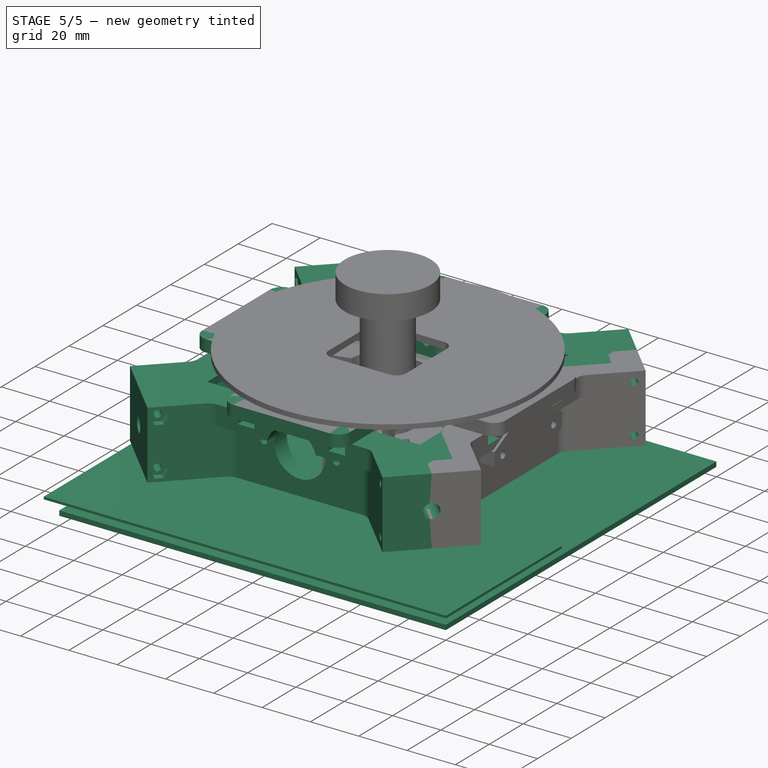
[diagram: stage 5 of 5 — iso view after this stage's code; geometry added in this stage tinted green]
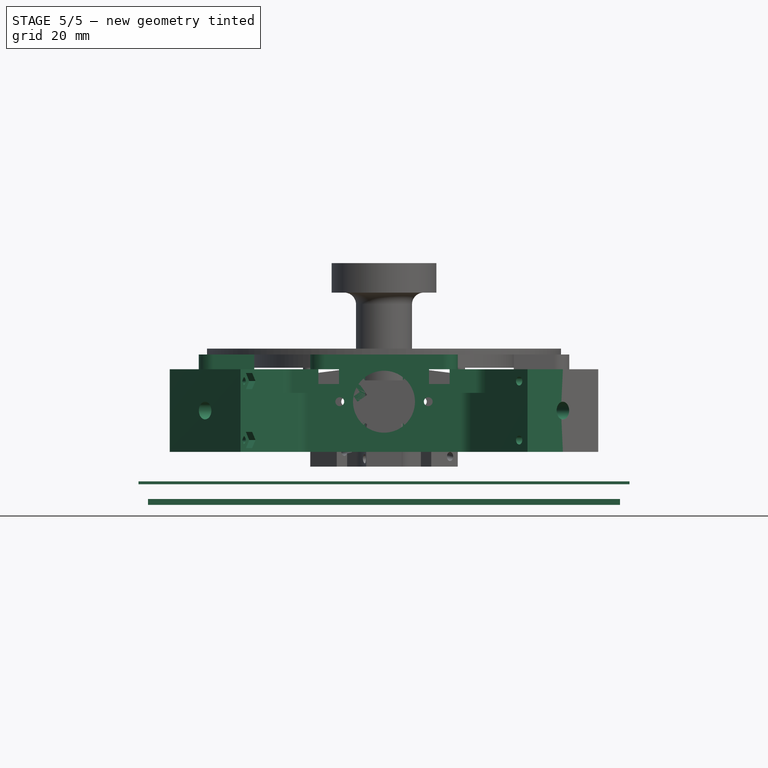
[diagram: stage 5 of 5 — front view after this stage's code; geometry added in this stage tinted green]
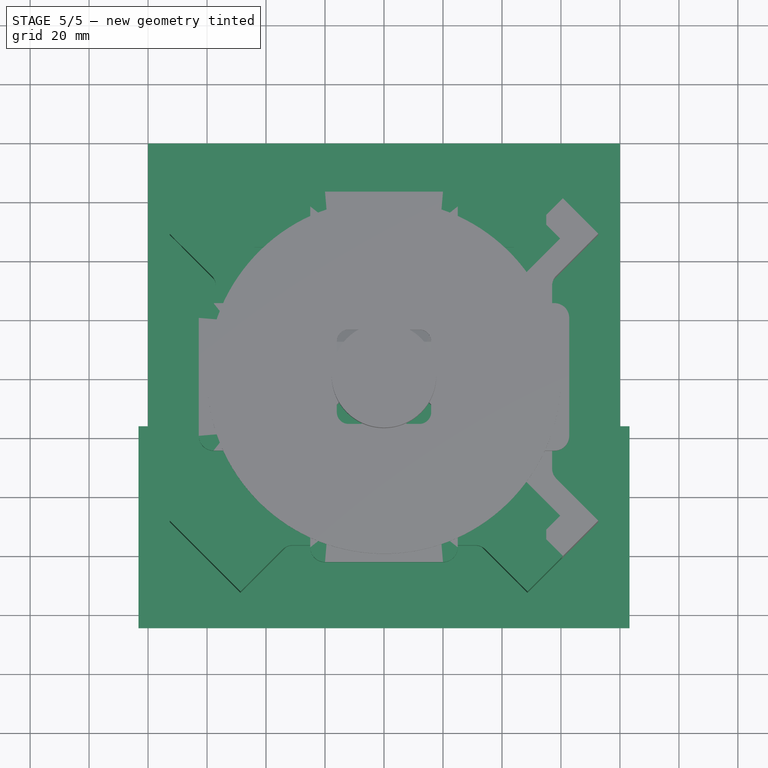
[diagram: stage 5 of 5 — top view after this stage's code; geometry added in this stage tinted green]
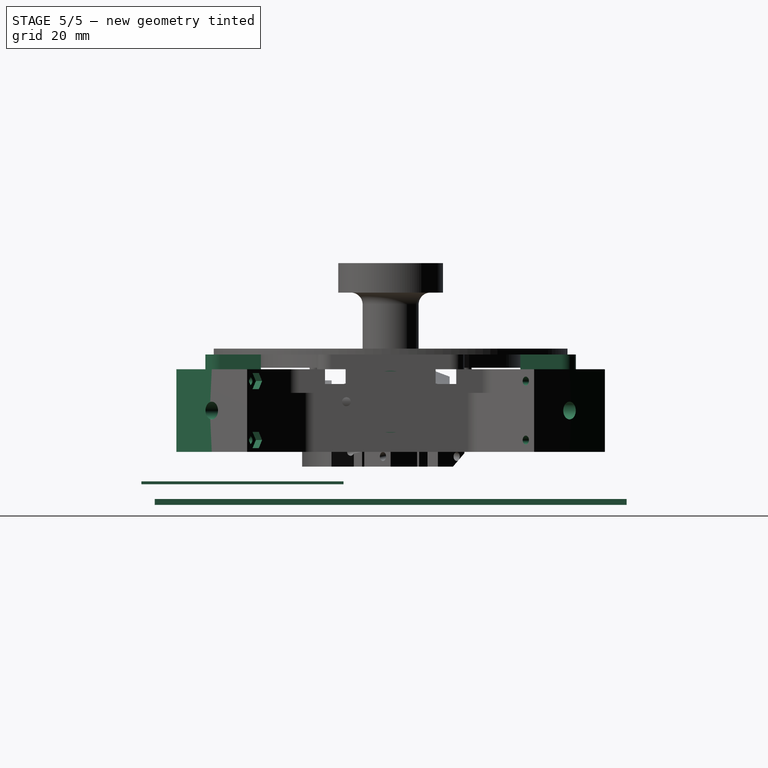
[diagram: stage 5 of 5 — right view after this stage's code; geometry added in this stage tinted green]
FEATURE [Sketcher::SketchObject] Sketch
  FullyConstrained = true
  MapMode = 5
  Placement = pos=(0,0,0) rot=(1,0,0;1.5708rad)
  Support = -> [XZ_Plane]
  sketch-geometry (2):
    g0: Circle CenterX=0 CenterY=0 CenterZ=0 NormalX=0 NormalY=0 NormalZ=1 AngleXU=0 Radius=11
    g1: Circle CenterX=0 CenterY=0 CenterZ=0 NormalX=0 NormalY=0 NormalZ=1 AngleXU=0 Radius=4
  constraints (4):
    c: Coincident(g0,g-1)
    c: Coincident(g1,g0)
    c: Radius(g1) = 4
    c: Radius(g0) = 11
FEATURE [PartDesign::Pad] Pad
  Direction = (0,-1,-2e-16)
  Length = 7
  Length2 = 10
  Placement = pos=(0,0,0) rot=(1,0,0;1.5708rad)
  Profile = -> Sketch
  ReferenceAxis = -> Sketch [N_Axis]
  Type = 0
FEATURE [PartDesign::Body] Body  label="608 Bearing"
  Group = -> [Sketch,Pad]
  Origin = -> Origin
  Tip = -> Pad
FEATURE [Sketcher::SketchObject] Sketch001
  FullyConstrained = true
  MapMode = 5
  Placement = pos=(0,0,0) rot=(1,0,0;1.5708rad)
  Support = -> [XZ_Plane001]
  sketch-geometry (2):
    g0: Circle CenterX=0 CenterY=0 CenterZ=0 NormalX=0 NormalY=0 NormalZ=1 AngleXU=0 Radius=1.5
    g1: Circle CenterX=0 CenterY=0 CenterZ=0 NormalX=0 NormalY=0 NormalZ=1 AngleXU=0 Radius=4.5
  constraints (4):
    c: Coincident(g0,g-1)
    c: Coincident(g1,g0)
    c: Radius(g0) = 1.5
    c: Radius(g1) = 4.5
FEATURE [PartDesign::Pad] Pad001
  Direction = (0,-1,-2e-16)
  Length = 5
  Length2 = 10
  Placement = pos=(0,0,0) rot=(1,0,0;1.5708rad)
  Profile = -> Sketch001
  ReferenceAxis = -> Sketch001 [N_Axis]
  Type = 0
FEATURE [PartDesign::Body] Body001  label="603 Bearing"
  Group = -> [Sketch001,Pad001]
  Origin = -> Origin001
  Placement = pos=(17,0,0) rot=(0,0,1;0rad)
  Tip = -> Pad001
FEATURE [Sketcher::SketchObject] Sketch002
  FullyConstrained = true
  MapMode = 5
  Placement = pos=(0,0,0) rot=(1,0,0;1.5708rad)
  Support = -> [XZ_Plane002]
  sketch-geometry (2):
    g0: Circle CenterX=0 CenterY=0 CenterZ=0 NormalX=0 NormalY=0 NormalZ=1 AngleXU=0 Radius=6
    g1: Circle CenterX=0 CenterY=0 CenterZ=0 NormalX=0 NormalY=0 NormalZ=1 AngleXU=0 Radius=2
  constraints (4):
    c: Coincident(g0,g-1)
    c: Coincident(g1,g0)
    c: Radius(g1) = 2
    c: Radius(g0) = 6
FEATURE [PartDesign::Pad] Pad002
  Direction = (0,-1,-2e-16)
  Length = 4
  Length2 = 10
  Placement = pos=(0,0,0) rot=(1,0,0;1.5708rad)
  Profile = -> Sketch002
  ReferenceAxis = -> Sketch002 [N_Axis]
  Type = 0
FEATURE [PartDesign::Body] Body027  label="Ref_CenterRod"
  Group = -> [Sketch101,Revolution001,Sketch102,Pad032,Fillet001]
  Origin = -> Origin027
  Tip = -> Fillet001
FEATURE [Sketcher::SketchObject] Sketch103
  AttachmentOffset = pos=(0,0,12) rot=(0,0,1;0rad)
  FullyConstrained = false
  MapMode = 5
  Placement = pos=(0,-12,-2.7e-15) rot=(1,0,0;1.5708rad)
  Support = -> [XZ_Plane028]
  sketch-geometry (15):
    g0: LineSegment StartX=43 StartY=3 StartZ=0 EndX=43 EndY=-7.5 EndZ=0
    g1: LineSegment StartX=17.1388 StartY=-4.68212 StartZ=0 EndX=2.78452 EndY=-9.08275 EndZ=0
    g2: LineSegment StartX=36 StartY=-10 StartZ=0 EndX=36 EndY=-7.5 EndZ=0
    g3: LineSegment StartX=36 StartY=-7.5 StartZ=0 EndX=43 EndY=-7.5 EndZ=0
    g4: LineSegment StartX=36 StartY=7 StartZ=0 EndX=36 EndY=3 EndZ=0
    g5: LineSegment StartX=36 StartY=3 StartZ=0 EndX=43 EndY=3 EndZ=0
    g6: LineSegment StartX=20.5358 StartY=-4.47081 StartZ=0 EndX=36 EndY=-10 EndZ=0
    g7: ArcOfCircle CenterX=0 CenterY=0 CenterZ=0 NormalX=0 NormalY=0 NormalZ=1 AngleXU=0 Radius=9.5 StartAngle=4.71239 EndAngle=5.00986
    g8: LineSegment StartX=-1.7e-15 StartY=-9.5 StartZ=0 EndX=9e-15 EndY=11.5 EndZ=0
    g9: ArcOfEllipse CenterX=16.4703 CenterY=-7.4924 CenterZ=0 NormalX=0 NormalY=0 NormalZ=1 MajorRadius=5.41539 MinorRadius=2.37282 AngleXU=0.453786 StartAngle=0.404381 EndAngle=1.22553
    g10: LineSegment StartX=21.3376 StartY=-5.11844 StartZ=0 EndX=11.603 EndY=-9.86635 EndZ=0
    g11: LineSegment StartX=15.4301 StartY=-5.35972 StartZ=0 EndX=17.5104 EndY=-9.62507 EndZ=0
    g12: GeomPoint X=20.8455 Y=-5.35846 Z=0
    g13: GeomPoint X=12.0951 Y=-9.62633 Z=0
    g14: ArcOfCircle CenterX=0 CenterY=-134.75 CenterZ=0 NormalX=0 NormalY=0 NormalZ=1 AngleXU=0 Radius=146.25 StartAngle=1.32209 EndAngle=1.5708
  constraints (31):
    c: DistanceY(g0,g-1) = 7.5
    c: Vertical(g2)
    c: Coincident(g3,g2)
    c: Coincident(g3,g0)
    c: DistanceY(g2,g2) = 2.5
    c: DistanceX(g2,g0) = 7
    c: Vertical(g4)
    c: Coincident(g5,g4)
    c: Coincident(g5,g0)
    c: DistanceY(g-1,g0) = 3
    c: Horizontal(g5)
    c: DistanceX(g5,g5) = 7
    c: DistanceY(g4,g4) = 4
    c: Horizontal(g3)
    c: Coincident(g6,g2)
    c: Coincident(g7,g-1)
    c: Radius(g7) = 9.5
    c: Tangent(g7,g1) = 1.5708
    c: PointOnObject(g8,g-2)
    c: DistanceY(g-1,g8) = 11.5
    c: PointOnObject(g7,g-2)
    c: Coincident(g8,g7)
    c: Vertical(g0)
    c: DistanceX(g-1,g0) = 43
    c: InternalAlignment(g10-g13 -> g9) x4
    c: Tangent(g6,g9) = 1.5708
    c: Tangent(g1,g9) = -1.5708
    c: Angle(g-1,g10) = 0.453786
    c: PointOnObject(g14,g-2)
    c: Coincident(g14,g8)
    c: Coincident(g14,g4)
FEATURE [Sketcher::SketchObject] Sketch104
  AttachmentOffset = pos=(0,0,12) rot=(0,0,1;0rad)
  FullyConstrained = true
  MapMode = 5
  Placement = pos=(0,-12,-2.7e-15) rot=(1,0,0;1.5708rad)
  Support = -> [XZ_Plane028]
  sketch-geometry (1):
    g0: Circle CenterX=0 CenterY=0 CenterZ=0 NormalX=0 NormalY=0 NormalZ=1 AngleXU=0 Radius=4.6
  constraints (2):
    c: Radius(g0) = 4.6
    c: Coincident(g0,g-1)
FEATURE [Sketcher::SketchObject] Sketch107
  FullyConstrained = true
  MapMode = 5
  Placement = pos=(0,0,0) rot=(1,0,0;1.5708rad)
  Support = -> [XZ_Plane028]
  sketch-geometry (2):
    g0: Circle CenterX=40 CenterY=-1 CenterZ=0 NormalX=0 NormalY=0 NormalZ=1 AngleXU=0 Radius=1.5
    g1: Circle CenterX=13 CenterY=0 CenterZ=0 NormalX=0 NormalY=0 NormalZ=1 AngleXU=0 Radius=1.5
  constraints (6):
    c: Radius(g0) = 1.5
    c: Radius(g1) = 1.5
    c: DistanceX(g1,g-1) = -13
    c: DistanceY(g0,g-1) = 1
    c: DistanceX(g0,g-1) = -40
    c: PointOnObject(g1,g-1)
FEATURE [Sketcher::SketchObject] Sketch112
  AttachmentOffset = pos=(0,0,-33) rot=(0,0,1;0rad)
  FullyConstrained = true
  MapMode = 5
  Placement = pos=(0,0,-33) rot=(0,0,1;0rad)
  Support = -> [XY_Plane030]
  sketch-geometry (4):
    g0: LineSegment StartX=-80 StartY=80 StartZ=0 EndX=80 EndY=80 EndZ=0
    g1: LineSegment StartX=80 StartY=80 StartZ=0 EndX=80 EndY=-80 EndZ=0
    g2: LineSegment StartX=80 StartY=-80 StartZ=0 EndX=-80 EndY=-80 EndZ=0
    g3: LineSegment StartX=-80 StartY=-80 StartZ=0 EndX=-80 EndY=80 EndZ=0
  constraints (10):
    c: Coincident(g0,g1)
    c: Coincident(g1,g2)
    c: Coincident(g2,g3)
    c: Coincident(g3,g0)
    c: Horizontal(g0)
    c: Vertical(g3)
    c: Symmetric(g0,g1,g-1)
    c: Symmetric(g2,g1,g-2)
    c: DistanceY(g1,g1) = 160
    c: DistanceX(g2,g2) = 160
FEATURE [PartDesign::Pad] Pad037
  Direction = (0,0,1)
  Length = 2
  Length2 = 10
  Profile = -> Sketch112
  ReferenceAxis = -> Sketch112 [N_Axis]
  Reversed = true
  Type = 0
FEATURE [Sketcher::SketchObject] Sketch123
  AttachmentOffset = pos=(0,0,-27) rot=(0,0,1;0rad)
  FullyConstrained = true
  MapMode = 5
  Placement = pos=(0,0,-27) rot=(0,0,1;0rad)
  Support = -> [XY_Plane033]
  sketch-geometry (4):
    g0: LineSegment StartX=-83.25 StartY=-16 StartZ=0 EndX=83.25 EndY=-16 EndZ=0
    g1: LineSegment StartX=83.25 StartY=-16 StartZ=0 EndX=83.25 EndY=-84.5 EndZ=0
    g2: LineSegment StartX=83.25 StartY=-84.5 StartZ=0 EndX=-83.25 EndY=-84.5 EndZ=0
    g3: LineSegment StartX=-83.25 StartY=-84.5 StartZ=0 EndX=-83.25 EndY=-16 EndZ=0
  constraints (11):
    c: Coincident(g0,g1)
    c: Coincident(g1,g2)
    c: Coincident(g2,g3)
    c: Coincident(g3,g0)
    c: Horizontal(g2)
    c: Vertical(g1)
    c: Vertical(g3)
    c: DistanceY(g1,g1) = 68.5
    c: DistanceX(g0,g0) = 166.5
    c: Symmetric(g0,g0,g-2)
    c: DistanceY(g0,g-1) = 16
FEATURE [PartDesign::Pad] Pad041
  Direction = (0,0,1)
  Length = 1
  Length2 = 10
  Profile = -> Sketch123
  ReferenceAxis = -> Sketch123 [N_Axis]
  Reversed = true
  Type = 0
FEATURE [Part::FeaturePython] Tube008  label="Ref_608_bearing1"  # WARN: FeaturePython — macro-defined, semantics opaque (R4)
  AttacherType = Attacher::AttachEngine3D
  Height = 7
  InnerRadius = 4
  OuterRadius = 11
  Placement = pos=(44.01,-0.01,0) rot=(0,1,0;1.5708rad)
FEATURE [Part::FeaturePython] Tube009  label="Ref_608_bearing2"  # WARN: FeaturePython — macro-defined, semantics opaque (R4)
  AttacherType = Attacher::AttachEngine3D
  Height = 7
  InnerRadius = 4
  OuterRadius = 11
  Placement = pos=(-50.99,-0.01,-2e-14) rot=(0,1,0;1.5708rad)
FEATURE [PartDesign::Pocket] Pocket135
  BaseFeature = -> Pocket134
  Direction = (-1,0,0)
  Length = 24
  Length2 = 5
  Midplane = true
  Profile = -> Sketch220
  ReferenceAxis = -> Sketch220 [N_Axis]
  Type = 0
FEATURE [Sketcher::SketchObject] Sketch226
  AttachmentOffset = pos=(0,0,42) rot=(0,0,1;0rad)
  FullyConstrained = true
  MapMode = 5
  Placement = pos=(42,-9.3e-15,9.3e-15) rot=(0.57735,0.57735,0.57735;2.0944rad)
  Support = -> [YZ_Plane044]
  sketch-geometry (2):
    g0: Circle CenterX=-15 CenterY=0 CenterZ=0 NormalX=0 NormalY=0 NormalZ=1 AngleXU=0 Radius=1.5
    g1: Circle CenterX=15 CenterY=0 CenterZ=0 NormalX=0 NormalY=0 NormalZ=1 AngleXU=0 Radius=1.5
  constraints (5):
    c: Symmetric(g1,g0,g-2)
    c: Radius(g1) = 1.5
    c: Equal(g1,g0)
    c: PointOnObject(g1,g-1)
    c: DistanceX(g-1,g1) = 15
FEATURE [PartDesign::Pocket] Pocket136
  BaseFeature = -> Pocket135
  Direction = (-1,2e-16,-3e-16)
  Length = 10
  Length2 = 5
  Profile = -> Sketch226
  ReferenceAxis = -> Sketch226 [N_Axis]
  Reversed = true
  Type = 0
FEATURE [PartDesign::Fillet] Fillet
  Base = -> Pocket136 [Edge150,Edge94,Edge104,Edge91]
  BaseFeature = -> Pocket136
  Radius = 5
  SupportTransform = false
  UseAllEdges = false
FEATURE [Sketcher::SketchObject] Sketch227
  FullyConstrained = true
  MapMode = 5
  Placement = pos=(12,12,0) rot=(0.281085,0.678598,0.678598;2.59356rad)
  Support = -> [Fillet]
  sketch-geometry (2):
    g0: Circle CenterX=-81.78 CenterY=7 CenterZ=0 NormalX=0 NormalY=0 NormalZ=1 AngleXU=0 Radius=1.5
    g1: Circle CenterX=-81.78 CenterY=-13 CenterZ=0 NormalX=0 NormalY=0 NormalZ=1 AngleXU=0 Radius=1.5
  constraints (6):
    c: Radius(g0) = 1.5
    c: Equal(g1,g0)
    c: Vertical(g1,g0)
    c: DistanceY(g1,g0) = 20
    c: DistanceY(g-1,g0) = 7
    c: DistanceX(g0,g-1) = 81.78
FEATURE [PartDesign::Pocket] Pocket137
  BaseFeature = -> Fillet
  Direction = (-0.707107,-0.707107,-1e-16)
  Length = 20
  Length2 = 5
  Profile = -> Sketch227
  ReferenceAxis = -> Sketch227 [N_Axis]
  Type = 0
FEATURE [Sketcher::SketchObject] Sketch229
  FullyConstrained = true
  MapMode = 5
  Placement = pos=(12,12,-1.6e-14) rot=(0.281085,0.678598,0.678598;2.59356rad)
  sketch-geometry (14):
    g0: LineSegment StartX=-80.1923 StartY=-10.25 StartZ=0 EndX=-83.3677 EndY=-10.25 EndZ=0
    g1: LineSegment StartX=-83.3677 StartY=-10.25 StartZ=0 EndX=-84.9554 EndY=-13 EndZ=0
    g2: LineSegment StartX=-84.9554 StartY=-13 StartZ=0 EndX=-83.3677 EndY=-15.75 EndZ=0
    g3: LineSegment StartX=-83.3677 StartY=-15.75 StartZ=0 EndX=-80.1923 EndY=-15.75 EndZ=0
    g4: LineSegment StartX=-80.1923 StartY=-15.75 StartZ=0 EndX=-78.6046 EndY=-13 EndZ=0
    g5: LineSegment StartX=-78.6046 StartY=-13 StartZ=0 EndX=-80.1923 EndY=-10.25 EndZ=0
    g6: Circle CenterX=-81.78 CenterY=-13 CenterZ=0 NormalX=0 NormalY=0 NormalZ=1 AngleXU=0 Radius=3.17543
    g7: LineSegment StartX=-80.1923 StartY=9.75 StartZ=0 EndX=-83.3677 EndY=9.75 EndZ=0
    g8: LineSegment StartX=-83.3677 StartY=9.75 StartZ=0 EndX=-84.9554 EndY=7 EndZ=0
    g9: LineSegment StartX=-84.9554 StartY=7 StartZ=0 EndX=-83.3677 EndY=4.25 EndZ=0
    g10: LineSegment StartX=-83.3677 StartY=4.25 StartZ=0 EndX=-80.1923 EndY=4.25 EndZ=0
    g11: LineSegment StartX=-80.1923 StartY=4.25 StartZ=0 EndX=-78.6046 EndY=7 EndZ=0
    g12: LineSegment StartX=-78.6046 StartY=7 StartZ=0 EndX=-80.1923 EndY=9.75 EndZ=0
    g13: Circle CenterX=-81.78 CenterY=7 CenterZ=0 NormalX=0 NormalY=0 NormalZ=1 AngleXU=0 Radius=3.17543
  constraints (34):
    c: Coincident(g0,g1)
    c: Coincident(g1,g2)
    c: Coincident(g2,g3)
    c: Coincident(g3,g4)
    c: Coincident(g4,g5)
    c: Coincident(g5,g0)
    c: Equal(g0, g1-g5) x5
    c: PointOnObject(g0,g6)
    c: PointOnObject(g1,g6)
    c: PointOnObject(g2,g6)
    c: PointOnObject(g3,g6)
    c: PointOnObject(g4,g6)
    c: PointOnObject(g5,g6)
    c: Coincident(g7,g8)
    c: Coincident(g8,g9)
    c: Coincident(g9,g10)
    c: Coincident(g10,g11)
    c: Coincident(g11,g12)
    c: Coincident(g12,g7)
    c: Equal(g7, g8-g12) x5
    c: PointOnObject(g7,g13)
    c: PointOnObject(g8,g13)
    c: PointOnObject(g9,g13)
    c: PointOnObject(g10,g13)
    c: PointOnObject(g11,g13)
    c: PointOnObject(g12,g13)
    c: Horizontal(g7)
    c: Horizontal(g0)
    c: DistanceY(g3,g0) = 5.5
    c: Equal(g7,g0)
    c: Vertical(g13,g6)
    c: DistanceX(g13,g-1) = 81.78
    c: DistanceY(g-1,g13) = 7
    c: DistanceY(g6,g13) = 20
FEATURE [PartDesign::Pocket] Pocket139
  BaseFeature = -> Pocket137
  Direction = (-0.707107,-0.707107,8e-16)
  Length = 3
  Length2 = 5
  Profile = -> Sketch229
  ReferenceAxis = -> Sketch229 [N_Axis]
  Type = 0
FEATURE [PartDesign::Chamfer] Chamfer037
  Angle = 45
  Base = -> Pocket139 [Edge170]
  BaseFeature = -> Pocket139
  ChamferType = 0
  FlipDirection = false
  Size = 0.49
  Size2 = 1
  SupportTransform = false
  UseAllEdges = false
FEATURE [Sketcher::SketchObject] Sketch247
  AttachmentOffset = pos=(0,0,8) rot=(0,0,1;0rad)
  FullyConstrained = true
  MapMode = 5
  Placement = pos=(0,0,8) rot=(0,0,1;0rad)
  Support = -> [XY_Plane044]
  sketch-geometry (5):
    g0: LineSegment StartX=44 StartY=-31.27 StartZ=0 EndX=59.73 EndY=-47 EndZ=0
    g1: LineSegment StartX=59.73 StartY=-47 StartZ=0 EndX=55 EndY=-51.73 EndZ=0
    g2: LineSegment StartX=55 StartY=-51.73 StartZ=0 EndX=55 EndY=-55 EndZ=0
    g3: LineSegment StartX=55 StartY=-55 StartZ=0 EndX=44 EndY=-44 EndZ=0
    g4: LineSegment StartX=44 StartY=-44 StartZ=0 EndX=44 EndY=-31.27 EndZ=0
  constraints (15):
    c: Coincident(g1,g0)
    c: Coincident(g2,g1)
    c: Vertical(g2)
    c: Coincident(g3,g2)
    c: Coincident(g4,g3)
    c: Coincident(g4,g0)
    c: Vertical(g4)
    c: DistanceY(g0,g-1) = 31.27
    c: DistanceX(g-1,g0) = 44
    c: Angle(g0) = -0.785398
    c: Perpendicular(g0,g1)
    c: Parallel(g3,g0)
    c: DistanceY(g2,g-1) = 55
    c: DistanceX(g-1,g2) = 55
    c: DistanceY(g0,g-1) = 47
FEATURE [PartDesign::Pad] Pad082
  BaseFeature = -> Chamfer037
  Direction = (0,0,1)
  Length = 3
  Length2 = 10
  Profile = -> Sketch247
  ReferenceAxis = -> Sketch247 [N_Axis]
  Type = 0
FEATURE [Sketcher::SketchObject] Sketch249
  FullyConstrained = true
  MapMode = 5
  Placement = pos=(60.6569,-60.6569,0) rot=(0.862856,0.357407,0.357407;1.71777rad)
  Support = -> [Pad082]
  sketch-geometry (1):
    g0: Circle CenterX=0 CenterY=-3 CenterZ=0 NormalX=0 NormalY=0 NormalZ=1 AngleXU=0 Radius=3
  constraints (3):
    c: Radius(g0) = 3
    c: PointOnObject(g0,g-2)
    c: DistanceY(g-1,g0) = -3
FEATURE [PartDesign::Pocket] Pocket153
  BaseFeature = -> Pad082
  Direction = (-0.707107,0.707107,-1e-16)
  Length = 12
  Length2 = 5
  Profile = -> Sketch249
  ReferenceAxis = -> Sketch249 [N_Axis]
  Type = 0
FEATURE [PartDesign::Mirrored] Mirrored005
  BaseFeature = -> Pocket153
  MirrorPlane = -> Sketch247 [H_Axis]
  Originals = -> [Pad082,Pocket137,Pocket153]
FEATURE [PartDesign::Body] Body044  label="CaseMountingPlate"
  Group = -> [Sketch217,Sketch218,Sketch219,Sketch221,Sketch220,Pad078,Pocket131,Sketch222,Pocket132,Sketch223,Pad079,Pad080,Pocket133,Pocket134,Sketch225,Pocket135,Sketch226,Pocket136,Fillet,Sketch227,Pocket137,Sketch229,Pocket139,Chamfer037,Sketch247,Pad082,Pocket153,Sketch249,Mirrored005]
  Origin = -> Origin044
  Tip = -> Mirrored005
FEATURE [Part::FeaturePython] Array  label="CaseMountingPlatesCollection"  # Draft array (typed FeaturePython)
  AlwaysSyncPlacement = false
  Angle = 360
  ArrayType = 1
  Axis = (0,0,1)
  Base = -> Body044
  Center = (0,0,0)
  Count = 4
  ExpandArray = false
  Fuse = false
  IntervalAxis = (0,0,0)
  IntervalX = (50,0,0)
  IntervalY = (0,50,0)
  IntervalZ = (0,0,50)
  NumberCircles = 3
  NumberPolar = 4
  NumberX = 2
  NumberY = 2
  NumberZ = 1
  PlacementList = 4 placements: [(0,0,0),(0,0,0),(0,0,0),(0,0,0)]
  RadialDistance = 50
  ScaleList = (4) [(1,1,1),(1,1,1),(1,1,1),(1,1,1)]
  Symmetry = 1
  TangentialDistance = 25
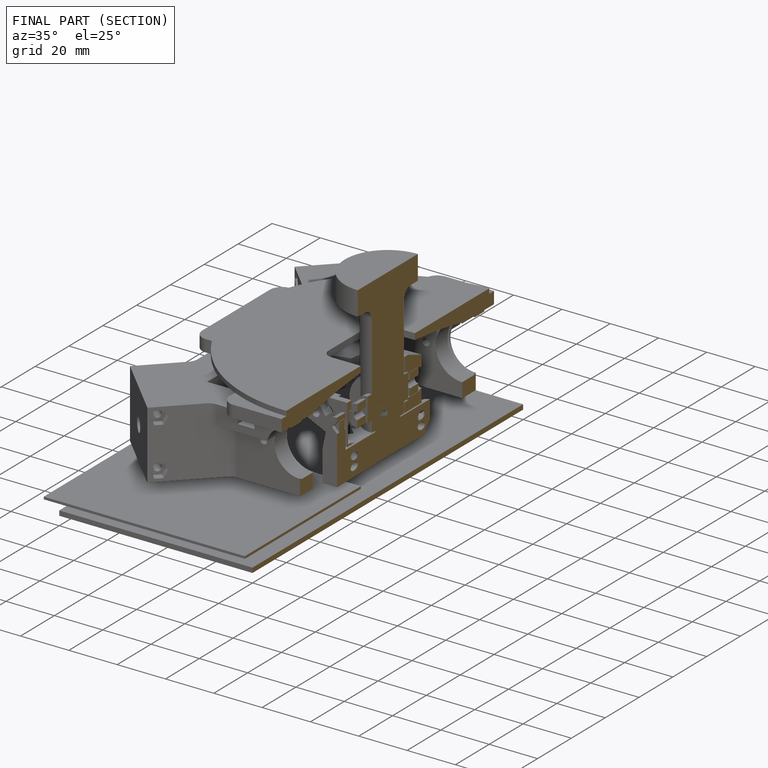
[diagram: finished part — half-section view (interior)]
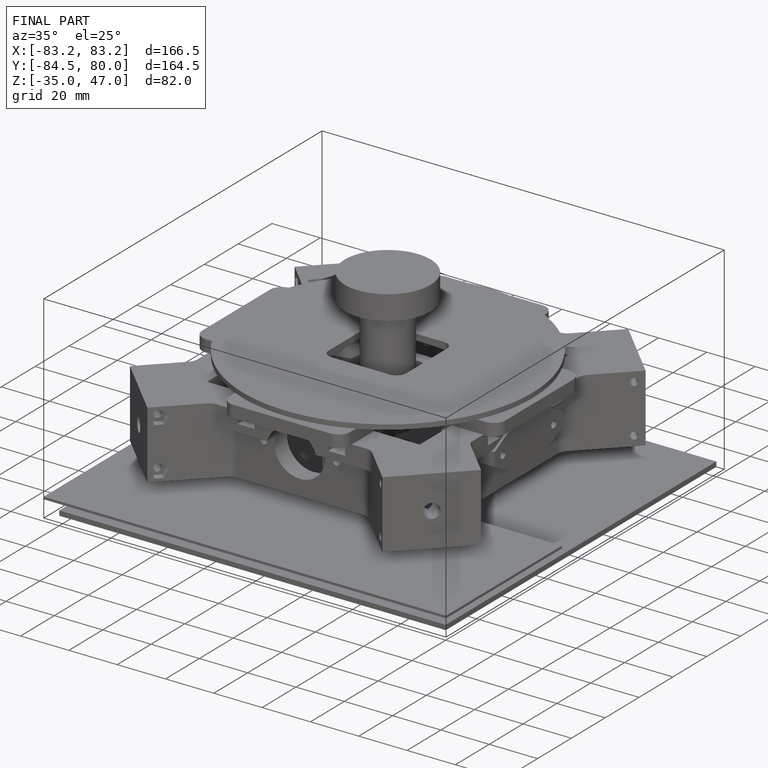
[diagram: finished part — iso view with bounding-box wireframe]
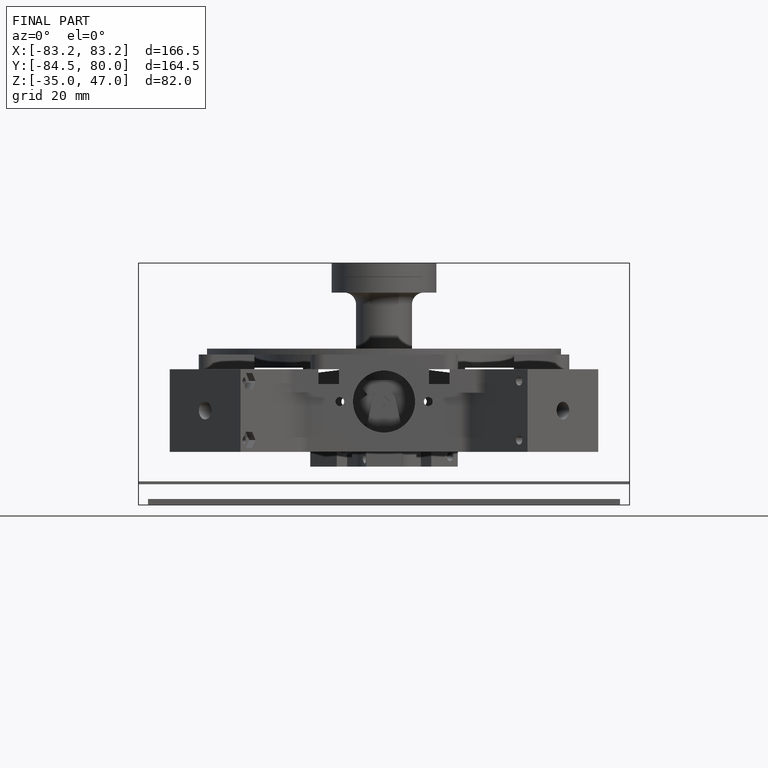
[diagram: finished part — front view with bounding-box wireframe]
